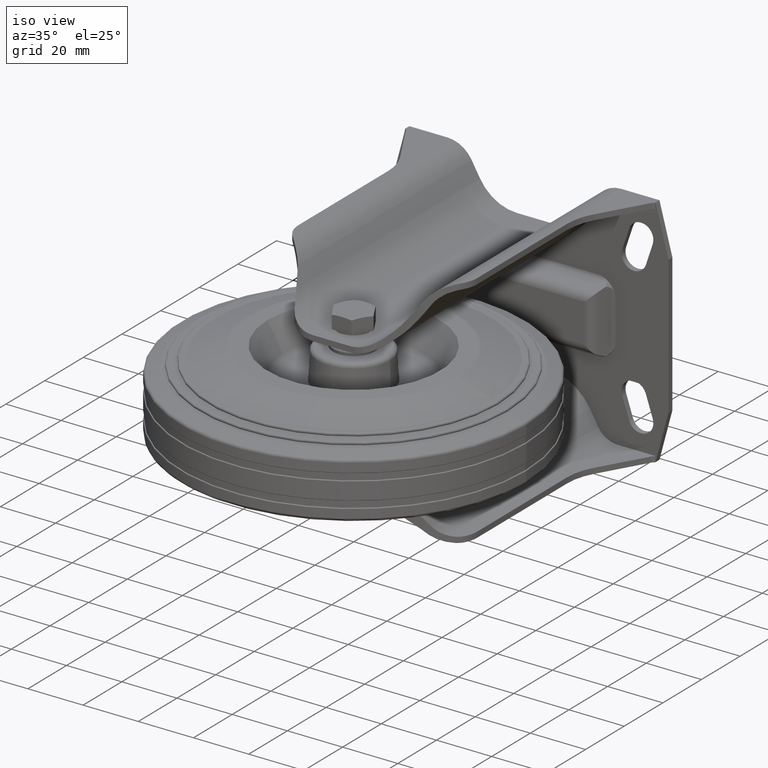
[diagram: clean part render]
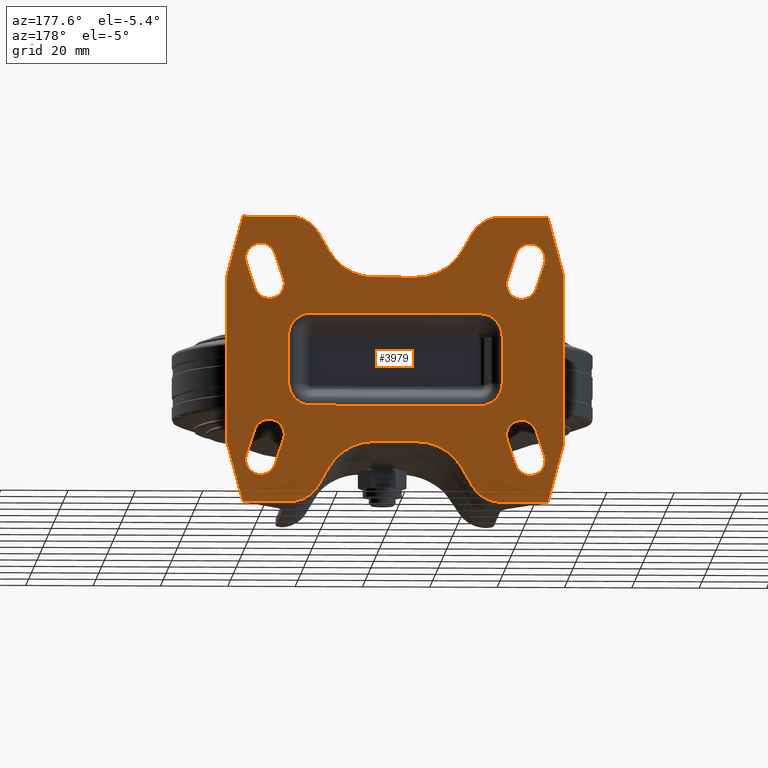
[diagram: tour spotlight — one face highlighted and labeled with its STEP entity id]
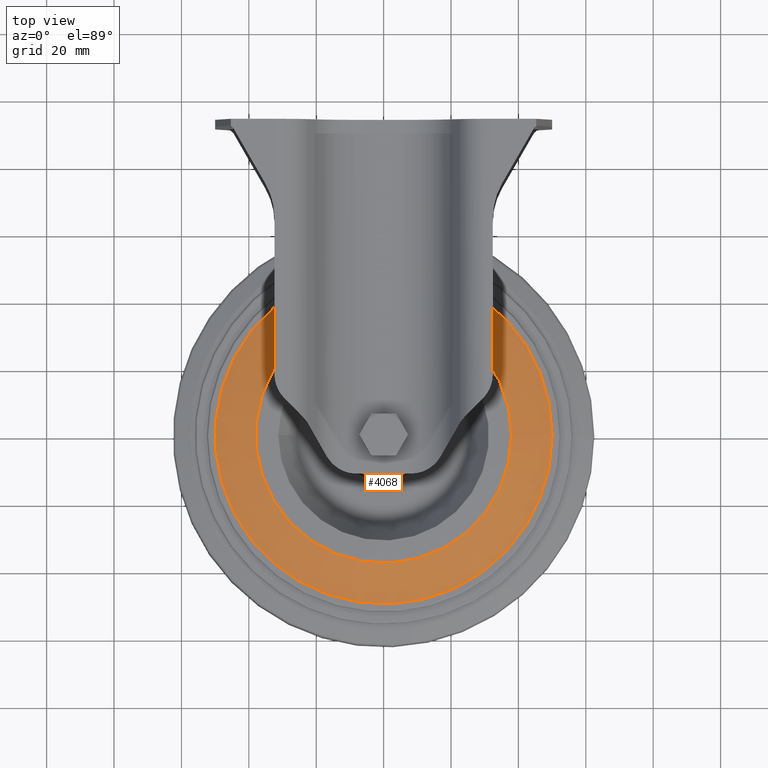
[diagram: tour spotlight — one face highlighted and labeled with its STEP entity id]
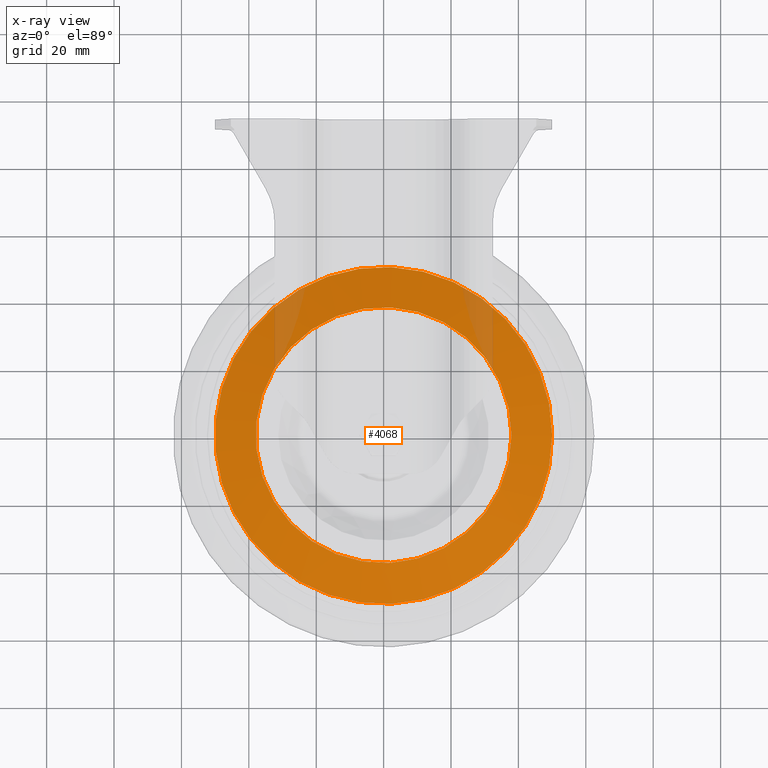
[diagram: x-ray of the same camera — body ghosted, this tour face saturated]
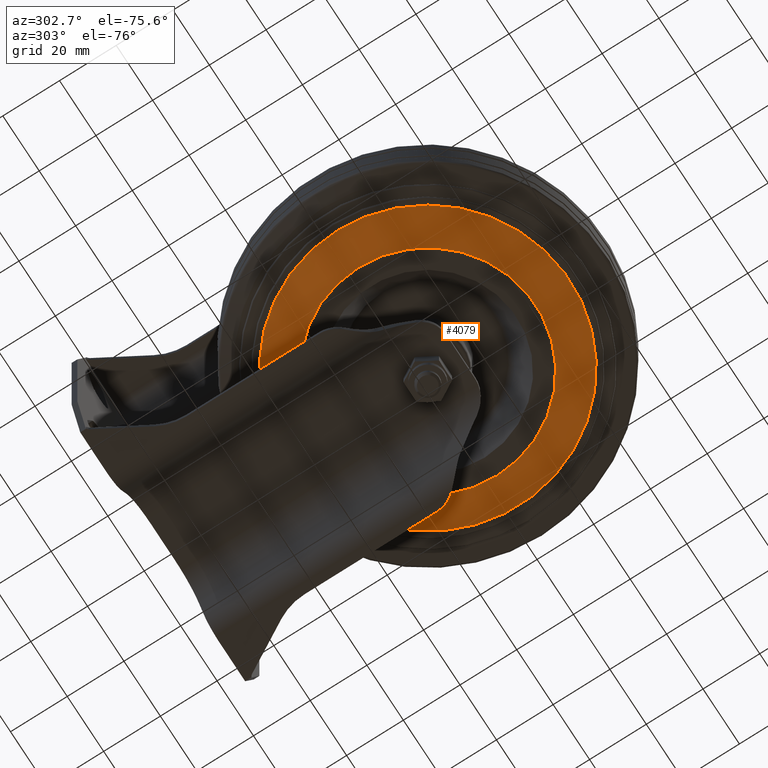
[diagram: tour spotlight — one face highlighted and labeled with its STEP entity id]
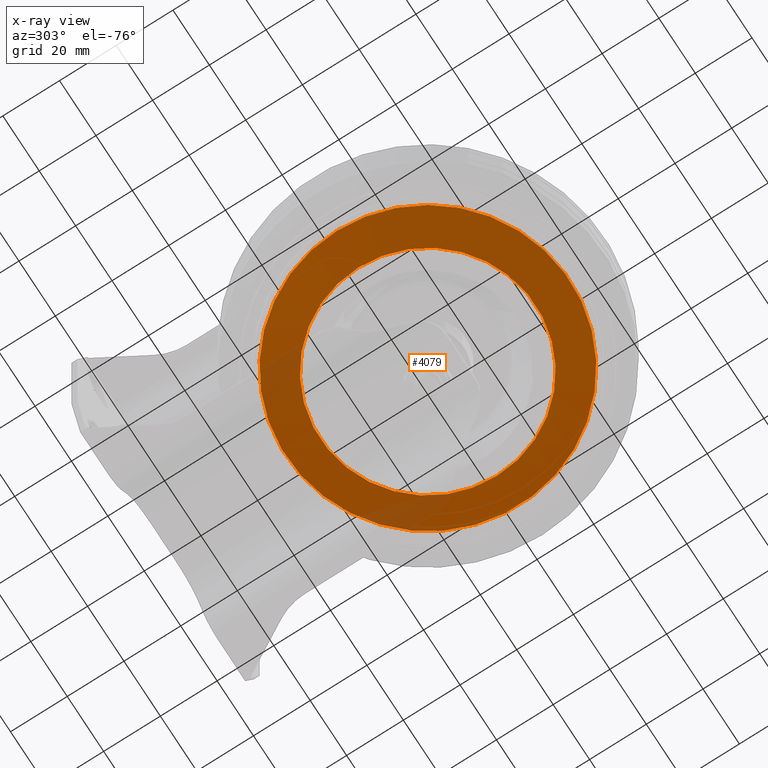
[diagram: x-ray of the same camera — body ghosted, this tour face saturated]
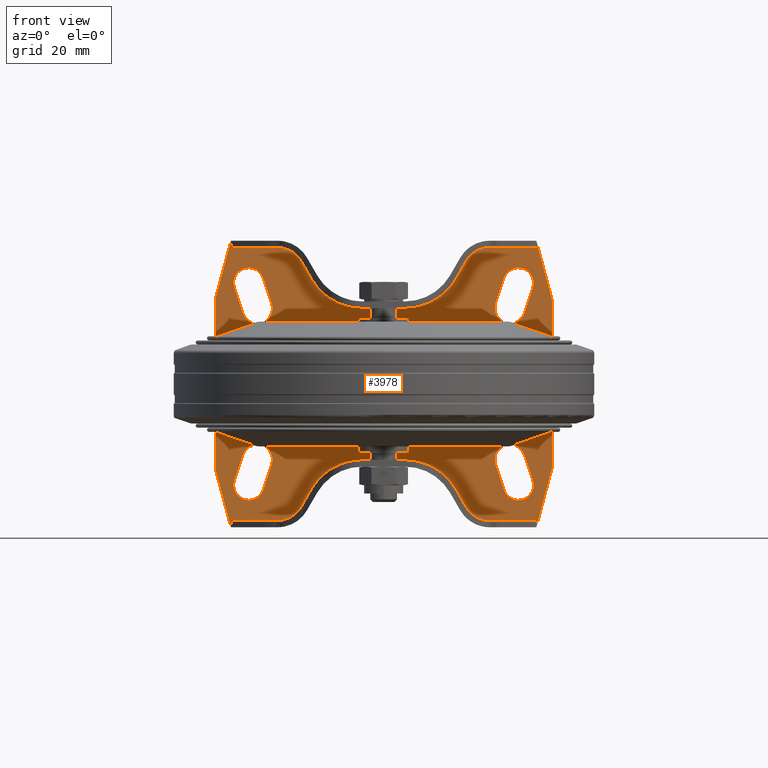
[diagram: tour spotlight — one face highlighted and labeled with its STEP entity id]
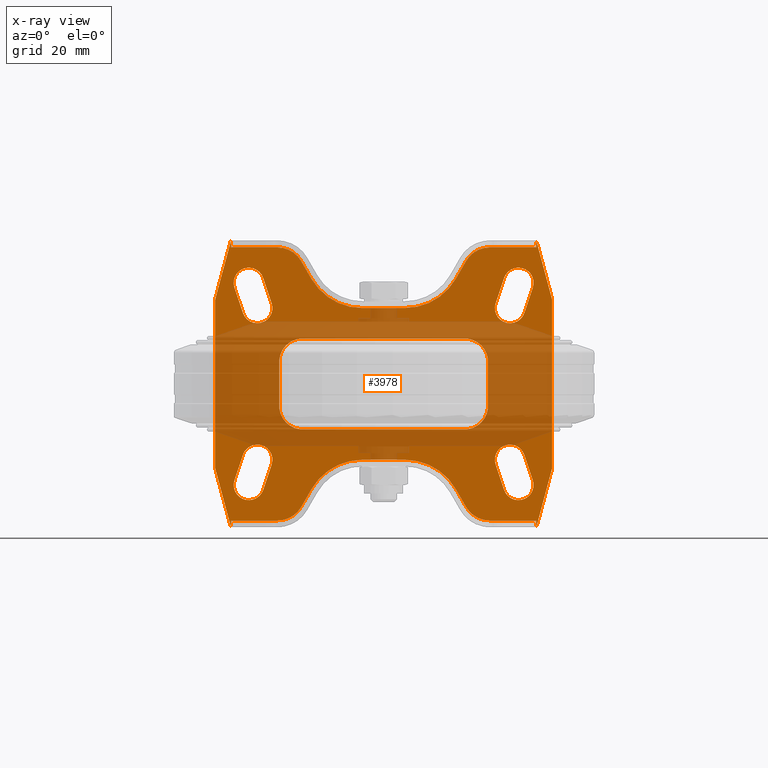
[diagram: x-ray of the same camera — body ghosted, this tour face saturated]
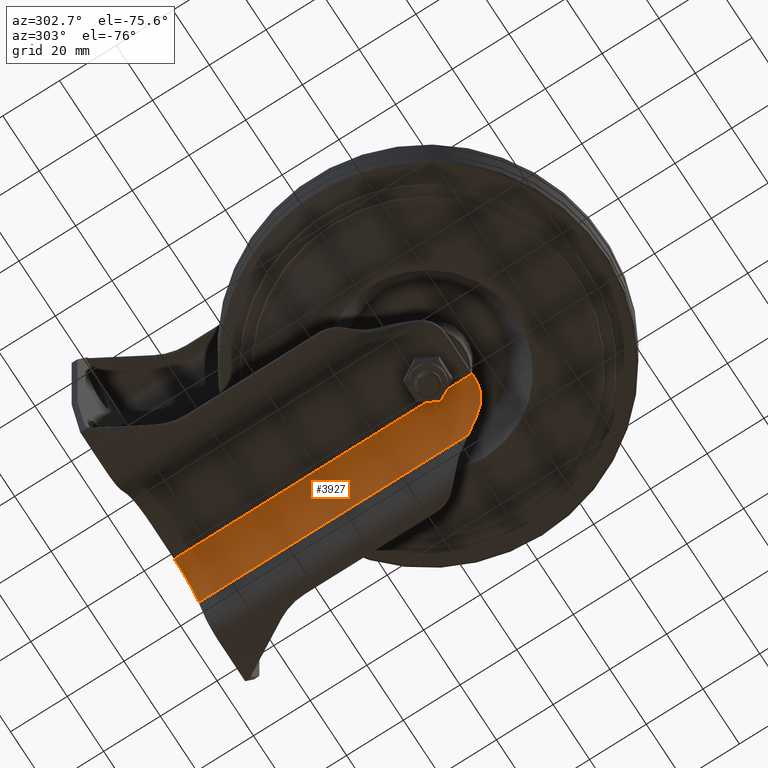
[diagram: tour spotlight — one face highlighted and labeled with its STEP entity id]
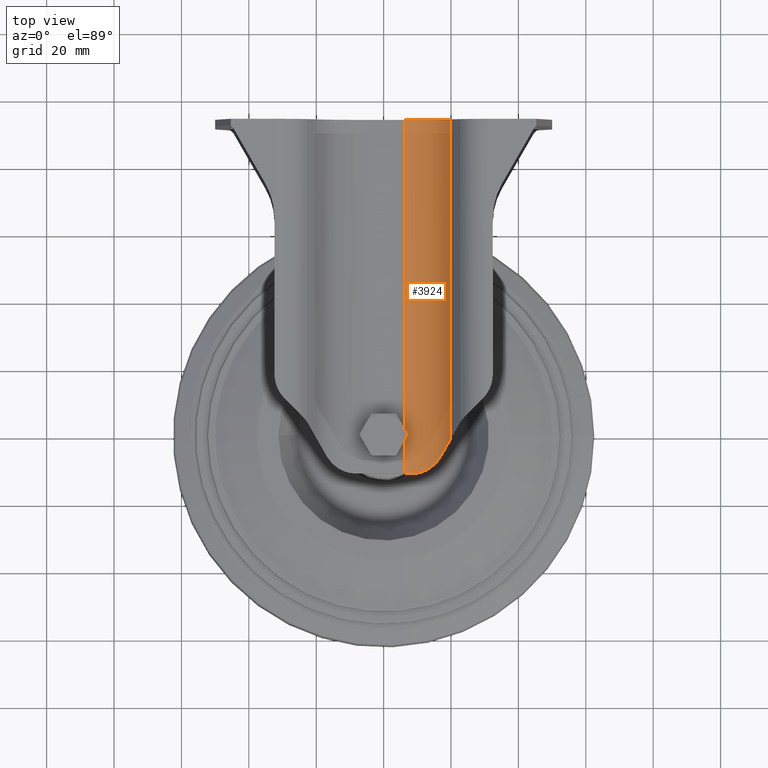
[diagram: tour spotlight — one face highlighted and labeled with its STEP entity id]
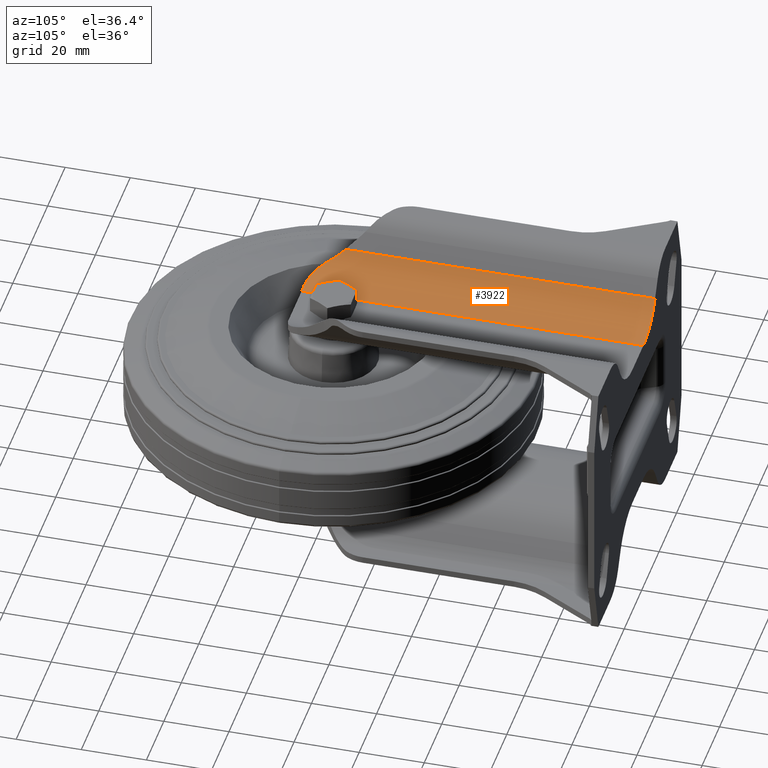
[diagram: tour spotlight — one face highlighted and labeled with its STEP entity id]
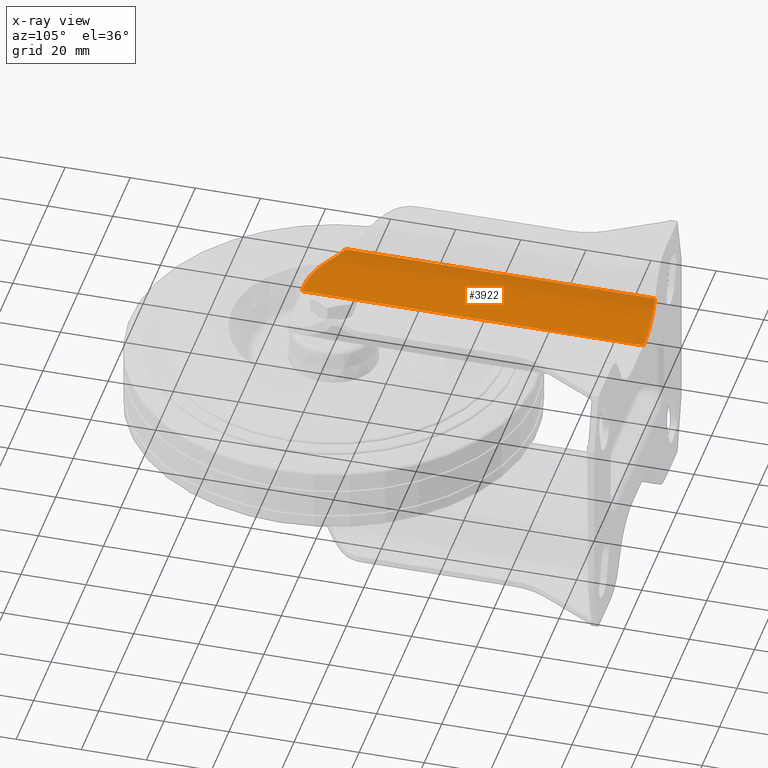
[diagram: x-ray of the same camera — body ghosted, this tour face saturated]
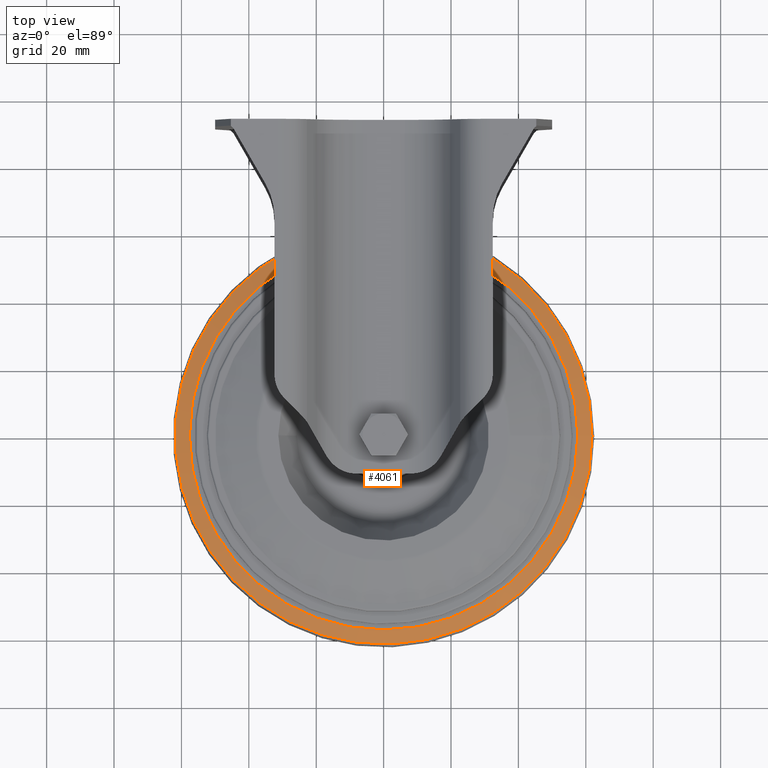
[diagram: tour spotlight — one face highlighted and labeled with its STEP entity id]
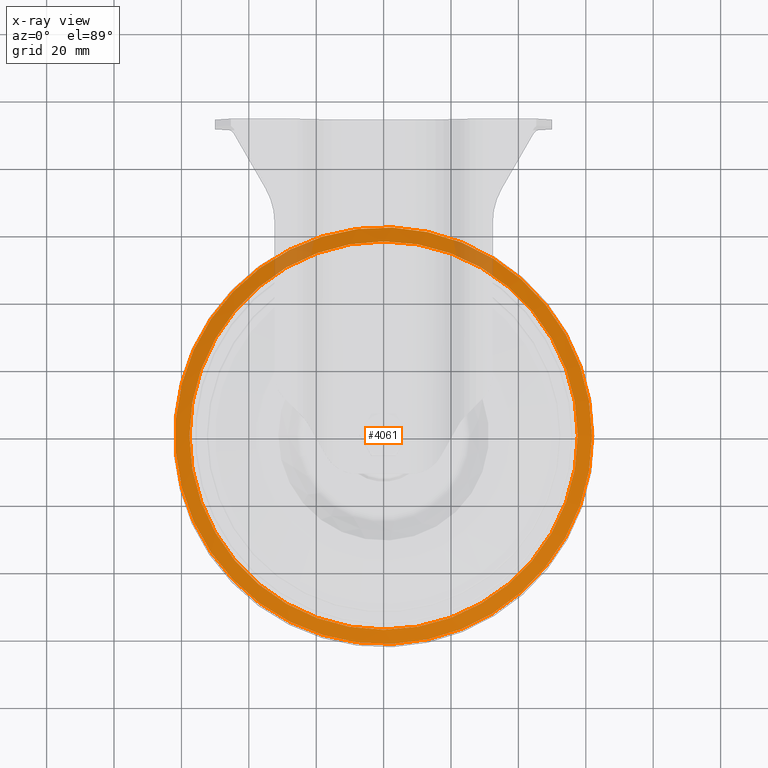
[diagram: x-ray of the same camera — body ghosted, this tour face saturated]
A machine part: a face-by-face anatomy tour. The part has 242 B-rep faces; the first image is the clean iso view, then the 8 largest visible faces are spotlighted one at a time (largest first), each with its STEP entity span.

Face 1 — auxiliary view, entity #3979. In plain terms, the highlighted planar face has unit normal (0, 1, 0).
Definition (entity closure, byte-faithful):
#185=FACE_BOUND('',#1292,.T.);
#186=FACE_BOUND('',#1293,.T.);
#187=FACE_BOUND('',#1294,.T.);
#188=FACE_BOUND('',#1295,.T.);
#189=FACE_BOUND('',#1296,.T.);
#263=PLANE('',#4467);
#335=LINE('',#6429,#602);
#345=LINE('',#6488,#612);
#349=LINE('',#6515,#616);
#353=LINE('',#6526,#620);
#357=LINE('',#6549,#624);
#365=LINE('',#6609,#632);
#416=LINE('',#6816,#683);
#419=LINE('',#6822,#686);
#422=LINE('',#6827,#689);
#425=LINE('',#6833,#692);
#429=LINE('',#6863,#696);
#431=LINE('',#6871,#698);
#434=LINE('',#6877,#701);
#437=LINE('',#6883,#704);
#443=LINE('',#6899,#710);
#445=LINE('',#6923,#712);
#446=LINE('',#6927,#713);
#451=LINE('',#6941,#718);
#454=LINE('',#6948,#721);
#459=LINE('',#6962,#726);
#462=LINE('',#6969,#729);
#467=LINE('',#6983,#734);
#470=LINE('',#6990,#737);
#475=LINE('',#7004,#742);
#484=LINE('',#7036,#751);
#485=LINE('',#7040,#752);
#486=LINE('',#7044,#753);
#487=LINE('',#7047,#754);
#602=VECTOR('',#4962,1000.);
#612=VECTOR('',#4992,1000.);
#616=VECTOR('',#5010,1000.);
#620=VECTOR('',#5018,1000.);
#624=VECTOR('',#5032,1000.);
#632=VECTOR('',#5064,1000.);
#683=VECTOR('',#5209,1000.);
#686=VECTOR('',#5214,1000.);
#689=VECTOR('',#5219,1000.);
#692=VECTOR('',#5226,1000.);
#696=VECTOR('',#5240,1000.);
#698=VECTOR('',#5248,1000.);
#701=VECTOR('',#5253,1000.);
#704=VECTOR('',#5258,1000.);
#710=VECTOR('',#5272,1000.);
#712=VECTOR('',#5284,1000.);
#713=VECTOR('',#5287,1000.);
#718=VECTOR('',#5300,1000.);
#721=VECTOR('',#5305,1000.);
#726=VECTOR('',#5318,1000.);
#729=VECTOR('',#5323,1000.);
#734=VECTOR('',#5336,1000.);
#737=VECTOR('',#5341,1000.);
#742=VECTOR('',#5354,1000.);
#751=VECTOR('',#5397,1000.);
#752=VECTOR('',#5400,1000.);
#753=VECTOR('',#5403,1000.);
#754=VECTOR('',#5406,1000.);
#1033=FACE_OUTER_BOUND('',#1291,.T.);
#1291=EDGE_LOOP('',(#3248,#3249,#3250,#3251,#3252,#3253,#3254,#3255,#3256,
#3257,#3258,#3259,#3260,#3261,#3262,#3263,#3264,#3265,#3266,#3267,#3268,
#3269,#3270,#3271));
#1292=EDGE_LOOP('',(#3272,#3273,#3274,#3275));
#1293=EDGE_LOOP('',(#3276,#3277,#3278,#3279));
#1294=EDGE_LOOP('',(#3280,#3281,#3282,#3283));
#1295=EDGE_LOOP('',(#3284,#3285,#3286,#3287));
#1296=EDGE_LOOP('',(#3288,#3289,#3290,#3291,#3292,#3293,#3294,#3295));
#1477=CIRCLE('',#4330,10.);
#1479=CIRCLE('',#4333,15.5);
#1481=CIRCLE('',#4339,15.5);
#1484=CIRCLE('',#4348,15.5);
#1487=CIRCLE('',#4354,15.5);
#1488=CIRCLE('',#4357,10.);
#1510=CIRCLE('',#4414,10.);
#1517=CIRCLE('',#4429,10.);
#1518=CIRCLE('',#4434,4.5);
#1520=CIRCLE('',#4439,4.5);
#1522=CIRCLE('',#4444,4.49999999999999);
#1524=CIRCLE('',#4449,4.5);
#1526=CIRCLE('',#4453,4.5);
#1528=CIRCLE('',#4456,4.5);
#1530=CIRCLE('',#4459,4.49999999999999);
#1532=CIRCLE('',#4462,4.5);
#1536=CIRCLE('',#4468,6.72974591282622);
#1537=CIRCLE('',#4469,6.72974591282623);
#1538=CIRCLE('',#4470,6.72974591282623);
#1539=CIRCLE('',#4471,6.72974591282622);
#1781=VERTEX_POINT('',#6426);
#1782=VERTEX_POINT('',#6428);
#1791=VERTEX_POINT('',#6452);
#1794=VERTEX_POINT('',#6467);
#1795=VERTEX_POINT('',#6469);
#1799=VERTEX_POINT('',#6486);
#1803=VERTEX_POINT('',#6495);
#1807=VERTEX_POINT('',#6513);
#1809=VERTEX_POINT('',#6518);
#1812=VERTEX_POINT('',#6524);
#1816=VERTEX_POINT('',#6541);
#1818=VERTEX_POINT('',#6547);
#1823=VERTEX_POINT('',#6566);
#1825=VERTEX_POINT('',#6571);
#1829=VERTEX_POINT('',#6591);
#1836=VERTEX_POINT('',#6607);
#1905=VERTEX_POINT('',#6815);
#1907=VERTEX_POINT('',#6821);
#1912=VERTEX_POINT('',#6845);
#1916=VERTEX_POINT('',#6861);
#1919=VERTEX_POINT('',#6870);
#1921=VERTEX_POINT('',#6876);
#1923=VERTEX_POINT('',#6882);
#1929=VERTEX_POINT('',#6897);
#1933=VERTEX_POINT('',#6925);
#1934=VERTEX_POINT('',#6926);
#1937=VERTEX_POINT('',#6934);
#1939=VERTEX_POINT('',#6940);
#1941=VERTEX_POINT('',#6946);
#1942=VERTEX_POINT('',#6947);
#1945=VERTEX_POINT('',#6955);
#1947=VERTEX_POINT('',#6961);
#1949=VERTEX_POINT('',#6967);
#1950=VERTEX_POINT('',#6968);
#1953=VERTEX_POINT('',#6976);
#1955=VERTEX_POINT('',#6982);
#1957=VERTEX_POINT('',#6988);
#1958=VERTEX_POINT('',#6989);
#1961=VERTEX_POINT('',#6997);
#1963=VERTEX_POINT('',#7003);
#1967=VERTEX_POINT('',#7032);
#1968=VERTEX_POINT('',#7033);
#1969=VERTEX_POINT('',#7035);
#1970=VERTEX_POINT('',#7037);
#1971=VERTEX_POINT('',#7039);
#1972=VERTEX_POINT('',#7041);
#1973=VERTEX_POINT('',#7043);
#1974=VERTEX_POINT('',#7045);
#2199=EDGE_CURVE('',#1782,#1781,#335,.T.);
#2209=EDGE_CURVE('',#1781,#1791,#1477,.T.);
#2213=EDGE_CURVE('',#1794,#1795,#1479,.T.);
#2219=EDGE_CURVE('',#1794,#1799,#345,.T.);
#2223=EDGE_CURVE('',#1803,#1799,#1481,.T.);
#2229=EDGE_CURVE('',#1803,#1807,#349,.T.);
#2234=EDGE_CURVE('',#1809,#1812,#353,.T.);
#2239=EDGE_CURVE('',#1816,#1812,#1484,.T.);
#2242=EDGE_CURVE('',#1816,#1818,#357,.T.);
#2248=EDGE_CURVE('',#1823,#1818,#1487,.T.);
#2254=EDGE_CURVE('',#1825,#1829,#1488,.T.);
#2262=EDGE_CURVE('',#1829,#1836,#365,.T.);
#2347=EDGE_CURVE('',#1836,#1905,#416,.T.);
#2350=EDGE_CURVE('',#1905,#1907,#419,.T.);
#2353=EDGE_CURVE('',#1907,#1782,#422,.T.);
#2357=EDGE_CURVE('',#1791,#1795,#425,.T.);
#2360=EDGE_CURVE('',#1807,#1912,#1510,.T.);
#2366=EDGE_CURVE('',#1912,#1916,#429,.T.);
#2370=EDGE_CURVE('',#1916,#1919,#431,.T.);
#2373=EDGE_CURVE('',#1919,#1921,#434,.T.);
#2376=EDGE_CURVE('',#1921,#1923,#437,.T.);
#2385=EDGE_CURVE('',#1923,#1929,#443,.T.);
#2389=EDGE_CURVE('',#1929,#1809,#1517,.T.);
#2392=EDGE_CURVE('',#1823,#1825,#445,.T.);
#2393=EDGE_CURVE('',#1933,#1934,#446,.T.);
#2397=EDGE_CURVE('',#1937,#1933,#1518,.T.);
#2400=EDGE_CURVE('',#1939,#1937,#451,.T.);
#2403=EDGE_CURVE('',#1941,#1942,#454,.T.);
#2407=EDGE_CURVE('',#1945,#1941,#1520,.T.);
#2410=EDGE_CURVE('',#1947,#1945,#459,.T.);
#2413=EDGE_CURVE('',#1949,#1950,#462,.T.);
#2417=EDGE_CURVE('',#1953,#1949,#1522,.T.);
#2420=EDGE_CURVE('',#1955,#1953,#467,.T.);
#2423=EDGE_CURVE('',#1957,#1958,#470,.T.);
#2427=EDGE_CURVE('',#1961,#1957,#1524,.T.);
#2430=EDGE_CURVE('',#1963,#1961,#475,.T.);
#2433=EDGE_CURVE('',#1934,#1939,#1526,.T.);
#2435=EDGE_CURVE('',#1942,#1947,#1528,.T.);
#2437=EDGE_CURVE('',#1950,#1955,#1530,.T.);
#2439=EDGE_CURVE('',#1958,#1963,#1532,.T.);
#2449=EDGE_CURVE('',#1967,#1968,#1536,.T.);
#2450=EDGE_CURVE('',#1969,#1968,#484,.T.);
#2451=EDGE_CURVE('',#1970,#1969,#1537,.T.);
#2452=EDGE_CURVE('',#1970,#1971,#485,.T.);
#2453=EDGE_CURVE('',#1972,#1971,#1538,.T.);
#2454=EDGE_CURVE('',#1972,#1973,#486,.T.);
#2455=EDGE_CURVE('',#1973,#1974,#1539,.T.);
#2456=EDGE_CURVE('',#1967,#1974,#487,.T.);
#3248=ORIENTED_EDGE('',*,*,#2353,.T.);
#3249=ORIENTED_EDGE('',*,*,#2199,.T.);
#3250=ORIENTED_EDGE('',*,*,#2209,.T.);
#3251=ORIENTED_EDGE('',*,*,#2357,.T.);
#3252=ORIENTED_EDGE('',*,*,#2213,.F.);
#3253=ORIENTED_EDGE('',*,*,#2219,.T.);
#3254=ORIENTED_EDGE('',*,*,#2223,.F.);
#3255=ORIENTED_EDGE('',*,*,#2229,.T.);
#3256=ORIENTED_EDGE('',*,*,#2360,.T.);
#3257=ORIENTED_EDGE('',*,*,#2366,.T.);
#3258=ORIENTED_EDGE('',*,*,#2370,.T.);
#3259=ORIENTED_EDGE('',*,*,#2373,.T.);
#3260=ORIENTED_EDGE('',*,*,#2376,.T.);
#3261=ORIENTED_EDGE('',*,*,#2385,.T.);
#3262=ORIENTED_EDGE('',*,*,#2389,.T.);
#3263=ORIENTED_EDGE('',*,*,#2234,.T.);
#3264=ORIENTED_EDGE('',*,*,#2239,.F.);
#3265=ORIENTED_EDGE('',*,*,#2242,.T.);
#3266=ORIENTED_EDGE('',*,*,#2248,.F.);
#3267=ORIENTED_EDGE('',*,*,#2392,.T.);
#3268=ORIENTED_EDGE('',*,*,#2254,.T.);
#3269=ORIENTED_EDGE('',*,*,#2262,.T.);
#3270=ORIENTED_EDGE('',*,*,#2347,.T.);
#3271=ORIENTED_EDGE('',*,*,#2350,.T.);
#3272=ORIENTED_EDGE('',*,*,#2423,.F.);
#3273=ORIENTED_EDGE('',*,*,#2427,.F.);
#3274=ORIENTED_EDGE('',*,*,#2430,.F.);
#3275=ORIENTED_EDGE('',*,*,#2439,.F.);
#3276=ORIENTED_EDGE('',*,*,#2413,.F.);
#3277=ORIENTED_EDGE('',*,*,#2417,.F.);
#3278=ORIENTED_EDGE('',*,*,#2420,.F.);
#3279=ORIENTED_EDGE('',*,*,#2437,.F.);
#3280=ORIENTED_EDGE('',*,*,#2403,.F.);
#3281=ORIENTED_EDGE('',*,*,#2407,.F.);
#3282=ORIENTED_EDGE('',*,*,#2410,.F.);
#3283=ORIENTED_EDGE('',*,*,#2435,.F.);
#3284=ORIENTED_EDGE('',*,*,#2393,.F.);
#3285=ORIENTED_EDGE('',*,*,#2397,.F.);
#3286=ORIENTED_EDGE('',*,*,#2400,.F.);
#3287=ORIENTED_EDGE('',*,*,#2433,.F.);
#3288=ORIENTED_EDGE('',*,*,#2449,.T.);
#3289=ORIENTED_EDGE('',*,*,#2450,.F.);
#3290=ORIENTED_EDGE('',*,*,#2451,.F.);
#3291=ORIENTED_EDGE('',*,*,#2452,.T.);
#3292=ORIENTED_EDGE('',*,*,#2453,.F.);
#3293=ORIENTED_EDGE('',*,*,#2454,.T.);
#3294=ORIENTED_EDGE('',*,*,#2455,.T.);
#3295=ORIENTED_EDGE('',*,*,#2456,.F.);
#3979=ADVANCED_FACE('',(#1033,#185,#186,#187,#188,#189),#263,.T.);
#4330=AXIS2_PLACEMENT_3D('',#6454,#4976,#4977);
#4333=AXIS2_PLACEMENT_3D('',#6470,#4983,#4984);
#4339=AXIS2_PLACEMENT_3D('',#6497,#5000,#5001);
#4348=AXIS2_PLACEMENT_3D('',#6543,#5026,#5027);
#4354=AXIS2_PLACEMENT_3D('',#6568,#5042,#5043);
#4357=AXIS2_PLACEMENT_3D('',#6593,#5050,#5051);
#4414=AXIS2_PLACEMENT_3D('',#6847,#5230,#5231);
#4429=AXIS2_PLACEMENT_3D('',#6918,#5277,#5278);
#4434=AXIS2_PLACEMENT_3D('',#6935,#5293,#5294);
#4439=AXIS2_PLACEMENT_3D('',#6956,#5311,#5312);
#4444=AXIS2_PLACEMENT_3D('',#6977,#5329,#5330);
#4449=AXIS2_PLACEMENT_3D('',#6998,#5347,#5348);
#4453=AXIS2_PLACEMENT_3D('',#7009,#5359,#5360);
#4456=AXIS2_PLACEMENT_3D('',#7012,#5365,#5366);
#4459=AXIS2_PLACEMENT_3D('',#7015,#5371,#5372);
#4462=AXIS2_PLACEMENT_3D('',#7018,#5377,#5378);
#4467=AXIS2_PLACEMENT_3D('',#7031,#5393,#5394);
#4468=AXIS2_PLACEMENT_3D('',#7034,#5395,#5396);
#4469=AXIS2_PLACEMENT_3D('',#7038,#5398,#5399);
#4470=AXIS2_PLACEMENT_3D('',#7042,#5401,#5402);
#4471=AXIS2_PLACEMENT_3D('',#7046,#5404,#5405);
#4962=DIRECTION('',(1.,0.,0.));
#4976=DIRECTION('center_axis',(0.,1.,0.));
#4977=DIRECTION('ref_axis',(1.,0.,0.));
#4983=DIRECTION('center_axis',(0.,1.,0.));
#4984=DIRECTION('ref_axis',(1.,0.,0.));
#4992=DIRECTION('',(1.,0.,0.));
#5000=DIRECTION('center_axis',(0.,1.,0.));
#5001=DIRECTION('ref_axis',(1.,0.,0.));
#5010=DIRECTION('',(0.5,0.,0.866025403784439));
#5018=DIRECTION('',(-0.5,0.,0.866025403784439));
#5026=DIRECTION('center_axis',(0.,1.,0.));
#5027=DIRECTION('ref_axis',(1.,0.,0.));
#5032=DIRECTION('',(-1.,0.,0.));
#5042=DIRECTION('center_axis',(0.,1.,0.));
#5043=DIRECTION('ref_axis',(1.,0.,0.));
#5050=DIRECTION('center_axis',(0.,1.,0.));
#5051=DIRECTION('ref_axis',(1.,0.,0.));
#5064=DIRECTION('',(-1.,0.,0.));
#5209=DIRECTION('',(-0.258819045102521,0.,0.965925826289068));
#5214=DIRECTION('',(0.,0.,1.));
#5219=DIRECTION('',(0.258819045102521,0.,0.965925826289068));
#5226=DIRECTION('',(0.5,0.,-0.866025403784439));
#5230=DIRECTION('center_axis',(0.,1.,0.));
#5231=DIRECTION('ref_axis',(1.,0.,0.));
#5240=DIRECTION('',(1.,0.,0.));
#5248=DIRECTION('',(0.258819045102521,0.,-0.965925826289068));
#5253=DIRECTION('',(0.,0.,-1.));
#5258=DIRECTION('',(-0.258819045102521,0.,-0.965925826289068));
#5272=DIRECTION('',(-1.,0.,0.));
#5277=DIRECTION('center_axis',(0.,1.,0.));
#5278=DIRECTION('ref_axis',(1.,0.,0.));
#5284=DIRECTION('',(-0.5,0.,-0.866025403784439));
#5287=DIRECTION('',(-0.316227766016838,0.,0.948683298050514));
#5293=DIRECTION('center_axis',(0.,1.,0.));
#5294=DIRECTION('ref_axis',(1.,0.,0.));
#5300=DIRECTION('',(0.316227766016838,0.,-0.948683298050514));
#5305=DIRECTION('',(-0.316227766016838,0.,-0.948683298050514));
#5311=DIRECTION('center_axis',(0.,1.,0.));
#5312=DIRECTION('ref_axis',(1.,0.,0.));
#5318=DIRECTION('',(0.316227766016838,0.,0.948683298050514));
#5323=DIRECTION('',(-0.316227766016838,0.,-0.948683298050514));
#5329=DIRECTION('center_axis',(0.,1.,0.));
#5330=DIRECTION('ref_axis',(1.,0.,0.));
#5336=DIRECTION('',(0.316227766016838,0.,0.948683298050514));
#5341=DIRECTION('',(-0.316227766016838,0.,0.948683298050514));
#5347=DIRECTION('center_axis',(0.,1.,0.));
#5348=DIRECTION('ref_axis',(1.,0.,0.));
#5354=DIRECTION('',(0.316227766016838,0.,-0.948683298050514));
#5359=DIRECTION('center_axis',(0.,1.,0.));
#5360=DIRECTION('ref_axis',(1.,0.,0.));
#5365=DIRECTION('center_axis',(0.,1.,0.));
#5366=DIRECTION('ref_axis',(1.,0.,0.));
#5371=DIRECTION('center_axis',(0.,1.,0.));
#5372=DIRECTION('ref_axis',(1.,0.,0.));
#5377=DIRECTION('center_axis',(0.,1.,0.));
#5378=DIRECTION('ref_axis',(1.,0.,0.));
#5393=DIRECTION('center_axis',(0.,1.,0.));
#5394=DIRECTION('ref_axis',(0.,0.,1.));
#5395=DIRECTION('center_axis',(0.,-1.,0.));
#5396=DIRECTION('ref_axis',(0.,0.,-1.));
#5397=DIRECTION('',(0.,0.,-1.));
#5398=DIRECTION('center_axis',(0.,1.,8.67361737988404E-17));
#5399=DIRECTION('ref_axis',(0.,-8.67361737988404E-17,1.));
#5400=DIRECTION('',(-1.,0.,0.));
#5401=DIRECTION('center_axis',(0.,1.,8.67361737988404E-17));
#5402=DIRECTION('ref_axis',(0.,-8.67361737988404E-17,1.));
#5403=DIRECTION('',(0.,0.,-1.));
#5404=DIRECTION('center_axis',(0.,-1.,0.));
#5405=DIRECTION('ref_axis',(0.,0.,-1.));
#5406=DIRECTION('',(-1.,0.,0.));
#6426=CARTESIAN_POINT('',(-31.4158075373095,93.5,42.5));
#6428=CARTESIAN_POINT('',(-45.3108891324554,93.5,42.5));
#6429=CARTESIAN_POINT('',(-45.3108891324554,93.5,42.5));
#6452=CARTESIAN_POINT('',(-22.7555534994651,93.5,37.5));
#6454=CARTESIAN_POINT('Origin',(-31.4158075373095,93.5,32.5));
#6467=CARTESIAN_POINT('',(-6.30107082756081,93.5,24.5));
#6469=CARTESIAN_POINT('',(-19.7244645862196,93.5,32.25));
#6470=CARTESIAN_POINT('Origin',(-6.3010708275608,93.5,40.));
#6486=CARTESIAN_POINT('',(6.3010708275608,93.5,24.5));
#6488=CARTESIAN_POINT('',(-6.3010708275608,93.5,24.5));
#6495=CARTESIAN_POINT('',(19.7244645862196,93.5,32.25));
#6497=CARTESIAN_POINT('Origin',(6.3010708275608,93.5,40.));
#6513=CARTESIAN_POINT('',(22.7555534994651,93.5,37.5));
#6515=CARTESIAN_POINT('',(19.7244645862196,93.5,32.25));
#6518=CARTESIAN_POINT('',(22.7555534994651,93.5,-37.5));
#6524=CARTESIAN_POINT('',(19.7244645862196,93.5,-32.25));
#6526=CARTESIAN_POINT('',(22.7555534994651,93.5,-37.5));
#6541=CARTESIAN_POINT('',(6.3010708275608,93.5,-24.5));
#6543=CARTESIAN_POINT('Origin',(6.3010708275608,93.5,-40.));
#6547=CARTESIAN_POINT('',(-6.3010708275608,93.5,-24.5));
#6549=CARTESIAN_POINT('',(6.3010708275608,93.5,-24.5));
#6566=CARTESIAN_POINT('',(-19.7244645862196,93.5,-32.25));
#6568=CARTESIAN_POINT('Origin',(-6.30107082756081,93.5,-40.));
#6571=CARTESIAN_POINT('',(-22.7555534994651,93.5,-37.5));
#6591=CARTESIAN_POINT('',(-31.4158075373095,93.5,-42.5));
#6593=CARTESIAN_POINT('Origin',(-31.4158075373095,93.5,-32.5));
#6607=CARTESIAN_POINT('',(-45.3108891324554,93.5,-42.5));
#6609=CARTESIAN_POINT('',(-31.4158075373095,93.5,-42.5));
#6815=CARTESIAN_POINT('',(-50.,93.5,-25.));
#6816=CARTESIAN_POINT('',(-45.3108891324554,93.5,-42.5));
#6821=CARTESIAN_POINT('',(-50.,93.5,25.));
#6822=CARTESIAN_POINT('',(-50.,93.5,-25.));
#6827=CARTESIAN_POINT('',(-50.,93.5,25.));
#6833=CARTESIAN_POINT('',(-22.7555534994651,93.5,37.5));
#6845=CARTESIAN_POINT('',(31.4158075373095,93.5,42.5));
#6847=CARTESIAN_POINT('Origin',(31.4158075373095,93.5,32.5));
#6861=CARTESIAN_POINT('',(45.3108891324554,93.5,42.5));
#6863=CARTESIAN_POINT('',(31.4158075373095,93.5,42.5));
#6870=CARTESIAN_POINT('',(50.,93.5,25.));
#6871=CARTESIAN_POINT('',(45.3108891324554,93.5,42.5));
#6876=CARTESIAN_POINT('',(50.,93.5,-25.));
#6877=CARTESIAN_POINT('',(50.,93.5,25.));
#6882=CARTESIAN_POINT('',(45.3108891324554,93.5,-42.5));
#6883=CARTESIAN_POINT('',(50.,93.5,-25.));
#6897=CARTESIAN_POINT('',(31.4158075373095,93.5,-42.5));
#6899=CARTESIAN_POINT('',(45.3108891324554,93.5,-42.5));
#6918=CARTESIAN_POINT('Origin',(31.4158075373095,93.5,-32.5));
#6923=CARTESIAN_POINT('',(-19.7244645862196,93.5,-32.25));
#6925=CARTESIAN_POINT('',(35.7309251587727,93.5,-31.4230249470758));
#6926=CARTESIAN_POINT('',(33.2309251587727,93.5,-23.9230249470758));
#6927=CARTESIAN_POINT('',(35.7309251587727,93.5,-31.4230249470758));
#6934=CARTESIAN_POINT('',(44.2690748412273,93.5,-28.5769750529242));
#6935=CARTESIAN_POINT('Origin',(40.,93.5,-30.));
#6940=CARTESIAN_POINT('',(41.7690748412273,93.5,-21.0769750529242));
#6941=CARTESIAN_POINT('',(41.7690748412273,93.5,-21.0769750529242));
#6946=CARTESIAN_POINT('',(44.2690748412273,93.5,28.5769750529242));
#6947=CARTESIAN_POINT('',(41.7690748412273,93.5,21.0769750529242));
#6948=CARTESIAN_POINT('',(44.2690748412273,93.5,28.5769750529242));
#6955=CARTESIAN_POINT('',(35.7309251587727,93.5,31.4230249470758));
#6956=CARTESIAN_POINT('Origin',(40.,93.5,30.));
#6961=CARTESIAN_POINT('',(33.2309251587727,93.5,23.9230249470758));
#6962=CARTESIAN_POINT('',(33.2309251587727,93.5,23.9230249470758));
#6967=CARTESIAN_POINT('',(-33.2309251587727,93.5,-23.9230249470758));
#6968=CARTESIAN_POINT('',(-35.7309251587727,93.5,-31.4230249470758));
#6969=CARTESIAN_POINT('',(-33.2309251587727,93.5,-23.9230249470758));
#6976=CARTESIAN_POINT('',(-41.7690748412273,93.5,-21.0769750529242));
#6977=CARTESIAN_POINT('Origin',(-37.5,93.5,-22.5));
#6982=CARTESIAN_POINT('',(-44.2690748412273,93.5,-28.5769750529242));
#6983=CARTESIAN_POINT('',(-44.2690748412273,93.5,-28.5769750529242));
#6988=CARTESIAN_POINT('',(-41.7690748412273,93.5,21.0769750529242));
#6989=CARTESIAN_POINT('',(-44.2690748412273,93.5,28.5769750529242));
#6990=CARTESIAN_POINT('',(-41.7690748412273,93.5,21.0769750529242));
#6997=CARTESIAN_POINT('',(-33.2309251587727,93.5,23.9230249470758));
#6998=CARTESIAN_POINT('Origin',(-37.5,93.5,22.5));
#7003=CARTESIAN_POINT('',(-35.7309251587727,93.5,31.4230249470758));
#7004=CARTESIAN_POINT('',(-35.7309251587727,93.5,31.4230249470758));
#7009=CARTESIAN_POINT('Origin',(37.5,93.5,-22.5));
#7012=CARTESIAN_POINT('Origin',(37.5,93.5,22.5));
#7015=CARTESIAN_POINT('Origin',(-40.,93.5,-30.));
#7018=CARTESIAN_POINT('Origin',(-40.,93.5,30.));
#7031=CARTESIAN_POINT('Origin',(-31.4158075373095,93.5,32.5));
#7032=CARTESIAN_POINT('',(25.,93.5,-13.7297459128262));
#7033=CARTESIAN_POINT('',(31.7297459128262,93.5,-7.00000000000001));
#7034=CARTESIAN_POINT('Origin',(25.,93.5,-7.00000000000001));
#7035=CARTESIAN_POINT('',(31.7297459128262,93.5,7.));
#7036=CARTESIAN_POINT('',(31.7297459128262,93.5,7.));
#7037=CARTESIAN_POINT('',(25.,93.5,13.7297459128262));
#7038=CARTESIAN_POINT('Origin',(25.,93.5,7.));
#7039=CARTESIAN_POINT('',(-25.,93.5,13.7297459128262));
#7040=CARTESIAN_POINT('',(25.,93.5,13.7297459128262));
#7041=CARTESIAN_POINT('',(-31.7297459128262,93.5,7.));
#7042=CARTESIAN_POINT('Origin',(-25.,93.5,7.));
#7043=CARTESIAN_POINT('',(-31.7297459128262,93.5,-7.));
#7044=CARTESIAN_POINT('',(-31.7297459128262,93.5,7.));
#7045=CARTESIAN_POINT('',(-25.,93.5,-13.7297459128262));
#7046=CARTESIAN_POINT('Origin',(-25.,93.5,-7.00000000000001));
#7047=CARTESIAN_POINT('',(25.,93.5,-13.7297459128262));

Face 2 — top view, entity #4068. An x-ray twin of the same camera follows (body ghosted, this face saturated) — the face is partly hidden behind the body. In plain terms, the highlighted conical surface has half-angle 71 deg.
Definition (entity closure, byte-faithful):
#558=LINE('',#7349,#825);
#825=VECTOR('',#5757,50.);
#1122=FACE_OUTER_BOUND('',#1388,.T.);
#1388=EDGE_LOOP('',(#3692,#3693,#3694,#3695));
#1587=CIRCLE('',#4610,50.);
#1588=CIRCLE('',#4612,37.9746766361272);
#2020=VERTEX_POINT('',#7345);
#2021=VERTEX_POINT('',#7348);
#2582=EDGE_CURVE('',#2020,#2020,#1587,.T.);
#2583=EDGE_CURVE('',#2020,#2021,#558,.T.);
#2584=EDGE_CURVE('',#2021,#2021,#1588,.T.);
#3692=ORIENTED_EDGE('',*,*,#2582,.F.);
#3693=ORIENTED_EDGE('',*,*,#2583,.T.);
#3694=ORIENTED_EDGE('',*,*,#2584,.T.);
#3695=ORIENTED_EDGE('',*,*,#2583,.F.);
#3854=CONICAL_SURFACE('',#4611,50.,1.23918376891597);
#4068=ADVANCED_FACE('',(#1122),#3854,.T.);
#4610=AXIS2_PLACEMENT_3D('',#7346,#5753,#5754);
#4611=AXIS2_PLACEMENT_3D('',#7347,#5755,#5756);
#4612=AXIS2_PLACEMENT_3D('',#7350,#5758,#5759);
#5753=DIRECTION('center_axis',(-3.47869486588621E-17,0.,-1.));
#5754=DIRECTION('ref_axis',(-1.,0.,3.47869486588621E-17));
#5755=DIRECTION('center_axis',(-3.47869486588621E-17,0.,-1.));
#5756=DIRECTION('ref_axis',(-1.,0.,3.47869486588621E-17));
#5757=DIRECTION('',(-0.945518575599315,1.15792629714207E-16,0.32556815445716));
#5758=DIRECTION('center_axis',(-3.47869486588621E-17,0.,-1.));
#5759=DIRECTION('ref_axis',(-1.,0.,3.47869486588621E-17));
#7345=CARTESIAN_POINT('',(50.,-6.12323399573677E-15,14.1959048338792));
#7346=CARTESIAN_POINT('Origin',(4.93832212622248E-16,0.,14.1959048338792));
#7347=CARTESIAN_POINT('Origin',(4.93832212622248E-16,0.,14.1959048338792));
#7348=CARTESIAN_POINT('',(37.9746766361272,-4.6505566191089E-15,18.336555726798));
#7349=CARTESIAN_POINT('',(50.,-6.12323399573677E-15,14.1959048338792));
#7350=CARTESIAN_POINT('Origin',(6.37872822648484E-16,0.,18.336555726798));

Face 3 — auxiliary view, entity #4079. An x-ray twin of the same camera follows (body ghosted, this face saturated) — the face is partly hidden behind the body. In plain terms, the highlighted conical surface has half-angle 71 deg.
Definition (entity closure, byte-faithful):
#561=LINE('',#7396,#828);
#828=VECTOR('',#5820,37.9746766361272);
#1133=FACE_OUTER_BOUND('',#1403,.T.);
#1403=EDGE_LOOP('',(#3731,#3732,#3733,#3734,#3735));
#1604=CIRCLE('',#4638,37.9746766361272);
#1605=CIRCLE('',#4639,37.9746766361272);
#1606=CIRCLE('',#4641,50.);
#2033=VERTEX_POINT('',#7388);
#2034=VERTEX_POINT('',#7390);
#2035=VERTEX_POINT('',#7394);
#2602=EDGE_CURVE('',#2033,#2034,#1604,.T.);
#2603=EDGE_CURVE('',#2034,#2033,#1605,.T.);
#2604=EDGE_CURVE('',#2035,#2035,#1606,.T.);
#2605=EDGE_CURVE('',#2035,#2034,#561,.T.);
#3731=ORIENTED_EDGE('',*,*,#2604,.T.);
#3732=ORIENTED_EDGE('',*,*,#2605,.T.);
#3733=ORIENTED_EDGE('',*,*,#2602,.F.);
#3734=ORIENTED_EDGE('',*,*,#2603,.F.);
#3735=ORIENTED_EDGE('',*,*,#2605,.F.);
#3857=CONICAL_SURFACE('',#4640,37.9746766361272,1.23918376891597);
#4079=ADVANCED_FACE('',(#1133),#3857,.T.);
#4638=AXIS2_PLACEMENT_3D('',#7391,#5812,#5813);
#4639=AXIS2_PLACEMENT_3D('',#7392,#5814,#5815);
#4640=AXIS2_PLACEMENT_3D('',#7393,#5816,#5817);
#4641=AXIS2_PLACEMENT_3D('',#7395,#5818,#5819);
#5812=DIRECTION('center_axis',(-3.47869486588621E-17,0.,-1.));
#5813=DIRECTION('ref_axis',(-1.,0.,3.47869486588621E-17));
#5814=DIRECTION('center_axis',(-3.47869486588621E-17,0.,-1.));
#5815=DIRECTION('ref_axis',(-1.,0.,3.47869486588621E-17));
#5816=DIRECTION('center_axis',(3.47869486588621E-17,0.,1.));
#5817=DIRECTION('ref_axis',(1.,0.,-3.47869486588621E-17));
#5818=DIRECTION('center_axis',(-3.47869486588621E-17,0.,-1.));
#5819=DIRECTION('ref_axis',(-1.,0.,3.47869486588621E-17));
#5820=DIRECTION('',(0.945518575599316,1.15792629714207E-16,-0.325568154457161));
#7388=CARTESIAN_POINT('',(37.9746766361272,-4.6505566191089E-15,-18.336555726798));
#7390=CARTESIAN_POINT('',(-37.9746766361272,0.,-18.336555726798));
#7391=CARTESIAN_POINT('Origin',(-6.37872822648484E-16,0.,-18.336555726798));
#7392=CARTESIAN_POINT('Origin',(-6.37872822648484E-16,0.,-18.336555726798));
#7393=CARTESIAN_POINT('Origin',(-6.37872822648484E-16,0.,-18.336555726798));
#7394=CARTESIAN_POINT('',(-50.,0.,-14.1959048338792));
#7395=CARTESIAN_POINT('Origin',(-4.93832212622248E-16,0.,-14.1959048338792));
#7396=CARTESIAN_POINT('',(-37.9746766361272,-4.6505566191089E-15,-18.336555726798));

Face 4 — front view, entity #3978. An x-ray twin of the same camera follows (body ghosted, this face saturated) — the face is partly hidden behind the body. In plain terms, the highlighted planar face has unit normal (0, 1, 0).
Definition (entity closure, byte-faithful):
#180=FACE_BOUND('',#1286,.T.);
#181=FACE_BOUND('',#1287,.T.);
#182=FACE_BOUND('',#1288,.T.);
#183=FACE_BOUND('',#1289,.T.);
#184=FACE_BOUND('',#1290,.T.);
#262=PLANE('',#4464);
#368=LINE('',#6615,#635);
#370=LINE('',#6622,#637);
#376=LINE('',#6649,#643);
#381=LINE('',#6673,#648);
#385=LINE('',#6701,#652);
#390=LINE('',#6711,#657);
#393=LINE('',#6717,#660);
#397=LINE('',#6726,#664);
#402=LINE('',#6739,#669);
#406=LINE('',#6762,#673);
#411=LINE('',#6791,#678);
#415=LINE('',#6813,#682);
#417=LINE('',#6818,#684);
#420=LINE('',#6824,#687);
#423=LINE('',#6828,#690);
#432=LINE('',#6873,#699);
#435=LINE('',#6879,#702);
#438=LINE('',#6884,#705);
#448=LINE('',#6931,#715);
#452=LINE('',#6943,#719);
#456=LINE('',#6952,#723);
#460=LINE('',#6964,#727);
#464=LINE('',#6973,#731);
#468=LINE('',#6985,#735);
#472=LINE('',#6994,#739);
#476=LINE('',#7006,#743);
#478=LINE('',#7022,#745);
#479=LINE('',#7026,#746);
#480=LINE('',#7027,#747);
#481=LINE('',#7028,#748);
#482=LINE('',#7029,#749);
#483=LINE('',#7030,#750);
#635=VECTOR('',#5069,1000.);
#637=VECTOR('',#5075,1000.);
#643=VECTOR('',#5095,1000.);
#648=VECTOR('',#5110,1000.);
#652=VECTOR('',#5128,1000.);
#657=VECTOR('',#5135,1000.);
#660=VECTOR('',#5140,1000.);
#664=VECTOR('',#5146,1000.);
#669=VECTOR('',#5155,1000.);
#673=VECTOR('',#5169,1000.);
#678=VECTOR('',#5188,1000.);
#682=VECTOR('',#5206,1000.);
#684=VECTOR('',#5210,1000.);
#687=VECTOR('',#5215,1000.);
#690=VECTOR('',#5220,1000.);
#699=VECTOR('',#5249,1000.);
#702=VECTOR('',#5254,1000.);
#705=VECTOR('',#5259,1000.);
#715=VECTOR('',#5289,1000.);
#719=VECTOR('',#5301,1000.);
#723=VECTOR('',#5307,1000.);
#727=VECTOR('',#5319,1000.);
#731=VECTOR('',#5325,1000.);
#735=VECTOR('',#5337,1000.);
#739=VECTOR('',#5343,1000.);
#743=VECTOR('',#5355,1000.);
#745=VECTOR('',#5383,1000.);
#746=VECTOR('',#5388,1000.);
#747=VECTOR('',#5389,1000.);
#748=VECTOR('',#5390,1000.);
#749=VECTOR('',#5391,1000.);
#750=VECTOR('',#5392,1000.);
#1032=FACE_OUTER_BOUND('',#1285,.T.);
#1285=EDGE_LOOP('',(#3196,#3197,#3198,#3199,#3200,#3201,#3202,#3203,#3204,
#3205,#3206,#3207,#3208,#3209,#3210,#3211,#3212,#3213,#3214,#3215,#3216,
#3217,#3218,#3219,#3220,#3221,#3222,#3223));
#1286=EDGE_LOOP('',(#3224,#3225,#3226,#3227));
#1287=EDGE_LOOP('',(#3228,#3229,#3230,#3231));
#1288=EDGE_LOOP('',(#3232,#3233,#3234,#3235));
#1289=EDGE_LOOP('',(#3236,#3237,#3238,#3239));
#1290=EDGE_LOOP('',(#3240,#3241,#3242,#3243,#3244,#3245,#3246,#3247));
#1470=CIRCLE('',#4308,7.);
#1471=CIRCLE('',#4311,7.00000000000001);
#1472=CIRCLE('',#4315,7.);
#1473=CIRCLE('',#4321,7.00000000000001);
#1495=CIRCLE('',#4369,7.99999999999999);
#1497=CIRCLE('',#4374,17.5);
#1499=CIRCLE('',#4380,17.5);
#1502=CIRCLE('',#4392,17.5);
#1505=CIRCLE('',#4398,17.5);
#1506=CIRCLE('',#4403,8.00000000000001);
#1519=CIRCLE('',#4435,4.5);
#1521=CIRCLE('',#4440,4.5);
#1523=CIRCLE('',#4445,4.49999999999999);
#1525=CIRCLE('',#4450,4.5);
#1527=CIRCLE('',#4454,4.5);
#1529=CIRCLE('',#4457,4.5);
#1531=CIRCLE('',#4460,4.49999999999999);
#1533=CIRCLE('',#4463,4.5);
#1534=CIRCLE('',#4465,7.99999999999997);
#1535=CIRCLE('',#4466,8.00000000000001);
#1751=VERTEX_POINT('',#6268);
#1755=VERTEX_POINT('',#6286);
#1758=VERTEX_POINT('',#6304);
#1759=VERTEX_POINT('',#6317);
#1765=VERTEX_POINT('',#6343);
#1766=VERTEX_POINT('',#6344);
#1773=VERTEX_POINT('',#6381);
#1774=VERTEX_POINT('',#6394);
#1783=VERTEX_POINT('',#6430);
#1835=VERTEX_POINT('',#6605);
#1838=VERTEX_POINT('',#6613);
#1841=VERTEX_POINT('',#6620);
#1847=VERTEX_POINT('',#6634);
#1851=VERTEX_POINT('',#6647);
#1855=VERTEX_POINT('',#6664);
#1857=VERTEX_POINT('',#6671);
#1862=VERTEX_POINT('',#6689);
#1866=VERTEX_POINT('',#6699);
#1868=VERTEX_POINT('',#6705);
#1870=VERTEX_POINT('',#6709);
#1872=VERTEX_POINT('',#6714);
#1874=VERTEX_POINT('',#6720);
#1876=VERTEX_POINT('',#6724);
#1878=VERTEX_POINT('',#6729);
#1882=VERTEX_POINT('',#6737);
#1886=VERTEX_POINT('',#6754);
#1888=VERTEX_POINT('',#6760);
#1893=VERTEX_POINT('',#6779);
#1897=VERTEX_POINT('',#6789);
#1900=VERTEX_POINT('',#6800);
#1906=VERTEX_POINT('',#6817);
#1908=VERTEX_POINT('',#6823);
#1920=VERTEX_POINT('',#6872);
#1922=VERTEX_POINT('',#6878);
#1935=VERTEX_POINT('',#6928);
#1936=VERTEX_POINT('',#6930);
#1938=VERTEX_POINT('',#6936);
#1940=VERTEX_POINT('',#6942);
#1943=VERTEX_POINT('',#6949);
#1944=VERTEX_POINT('',#6951);
#1946=VERTEX_POINT('',#6957);
#1948=VERTEX_POINT('',#6963);
#1951=VERTEX_POINT('',#6970);
#1952=VERTEX_POINT('',#6972);
#1954=VERTEX_POINT('',#6978);
#1956=VERTEX_POINT('',#6984);
#1959=VERTEX_POINT('',#6991);
#1960=VERTEX_POINT('',#6993);
#1962=VERTEX_POINT('',#6999);
#1964=VERTEX_POINT('',#7005);
#1965=VERTEX_POINT('',#7021);
#1966=VERTEX_POINT('',#7024);
#2169=EDGE_CURVE('',#1751,#1755,#1470,.T.);
#2172=EDGE_CURVE('',#1759,#1758,#1471,.T.);
#2179=EDGE_CURVE('',#1765,#1766,#1472,.T.);
#2187=EDGE_CURVE('',#1774,#1773,#1473,.T.);
#2265=EDGE_CURVE('',#1835,#1838,#368,.T.);
#2268=EDGE_CURVE('',#1838,#1841,#370,.T.);
#2275=EDGE_CURVE('',#1847,#1841,#1495,.T.);
#2280=EDGE_CURVE('',#1847,#1851,#376,.T.);
#2285=EDGE_CURVE('',#1851,#1855,#1497,.T.);
#2289=EDGE_CURVE('',#1855,#1857,#381,.T.);
#2294=EDGE_CURVE('',#1857,#1862,#1499,.T.);
#2299=EDGE_CURVE('',#1862,#1866,#385,.T.);
#2304=EDGE_CURVE('',#1868,#1870,#390,.T.);
#2307=EDGE_CURVE('',#1872,#1783,#393,.T.);
#2311=EDGE_CURVE('',#1874,#1876,#397,.T.);
#2317=EDGE_CURVE('',#1878,#1882,#402,.T.);
#2322=EDGE_CURVE('',#1882,#1886,#1502,.T.);
#2325=EDGE_CURVE('',#1886,#1888,#406,.T.);
#2331=EDGE_CURVE('',#1888,#1893,#1505,.T.);
#2336=EDGE_CURVE('',#1893,#1897,#411,.T.);
#2340=EDGE_CURVE('',#1900,#1897,#1506,.T.);
#2346=EDGE_CURVE('',#1900,#1872,#415,.T.);
#2348=EDGE_CURVE('',#1835,#1906,#417,.T.);
#2351=EDGE_CURVE('',#1906,#1908,#420,.T.);
#2354=EDGE_CURVE('',#1908,#1783,#423,.T.);
#2371=EDGE_CURVE('',#1874,#1920,#432,.T.);
#2374=EDGE_CURVE('',#1920,#1922,#435,.T.);
#2377=EDGE_CURVE('',#1922,#1870,#438,.T.);
#2395=EDGE_CURVE('',#1936,#1935,#448,.T.);
#2398=EDGE_CURVE('',#1938,#1936,#1519,.T.);
#2401=EDGE_CURVE('',#1940,#1938,#452,.T.);
#2405=EDGE_CURVE('',#1944,#1943,#456,.T.);
#2408=EDGE_CURVE('',#1946,#1944,#1521,.T.);
#2411=EDGE_CURVE('',#1948,#1946,#460,.T.);
#2415=EDGE_CURVE('',#1952,#1951,#464,.T.);
#2418=EDGE_CURVE('',#1954,#1952,#1523,.T.);
#2421=EDGE_CURVE('',#1956,#1954,#468,.T.);
#2425=EDGE_CURVE('',#1960,#1959,#472,.T.);
#2428=EDGE_CURVE('',#1962,#1960,#1525,.T.);
#2431=EDGE_CURVE('',#1964,#1962,#476,.T.);
#2434=EDGE_CURVE('',#1935,#1940,#1527,.T.);
#2436=EDGE_CURVE('',#1943,#1948,#1529,.T.);
#2438=EDGE_CURVE('',#1951,#1956,#1531,.T.);
#2440=EDGE_CURVE('',#1959,#1964,#1533,.T.);
#2441=EDGE_CURVE('',#1876,#1965,#478,.T.);
#2442=EDGE_CURVE('',#1878,#1965,#1534,.T.);
#2443=EDGE_CURVE('',#1966,#1866,#1535,.T.);
#2444=EDGE_CURVE('',#1966,#1868,#479,.T.);
#2445=EDGE_CURVE('',#1751,#1773,#480,.T.);
#2446=EDGE_CURVE('',#1755,#1759,#481,.T.);
#2447=EDGE_CURVE('',#1758,#1765,#482,.T.);
#2448=EDGE_CURVE('',#1774,#1766,#483,.T.);
#3196=ORIENTED_EDGE('',*,*,#2377,.F.);
#3197=ORIENTED_EDGE('',*,*,#2374,.F.);
#3198=ORIENTED_EDGE('',*,*,#2371,.F.);
#3199=ORIENTED_EDGE('',*,*,#2311,.T.);
#3200=ORIENTED_EDGE('',*,*,#2441,.T.);
#3201=ORIENTED_EDGE('',*,*,#2442,.F.);
#3202=ORIENTED_EDGE('',*,*,#2317,.T.);
#3203=ORIENTED_EDGE('',*,*,#2322,.T.);
#3204=ORIENTED_EDGE('',*,*,#2325,.T.);
#3205=ORIENTED_EDGE('',*,*,#2331,.T.);
#3206=ORIENTED_EDGE('',*,*,#2336,.T.);
#3207=ORIENTED_EDGE('',*,*,#2340,.F.);
#3208=ORIENTED_EDGE('',*,*,#2346,.T.);
#3209=ORIENTED_EDGE('',*,*,#2307,.T.);
#3210=ORIENTED_EDGE('',*,*,#2354,.F.);
#3211=ORIENTED_EDGE('',*,*,#2351,.F.);
#3212=ORIENTED_EDGE('',*,*,#2348,.F.);
#3213=ORIENTED_EDGE('',*,*,#2265,.T.);
#3214=ORIENTED_EDGE('',*,*,#2268,.T.);
#3215=ORIENTED_EDGE('',*,*,#2275,.F.);
#3216=ORIENTED_EDGE('',*,*,#2280,.T.);
#3217=ORIENTED_EDGE('',*,*,#2285,.T.);
#3218=ORIENTED_EDGE('',*,*,#2289,.T.);
#3219=ORIENTED_EDGE('',*,*,#2294,.T.);
#3220=ORIENTED_EDGE('',*,*,#2299,.T.);
#3221=ORIENTED_EDGE('',*,*,#2443,.F.);
#3222=ORIENTED_EDGE('',*,*,#2444,.T.);
#3223=ORIENTED_EDGE('',*,*,#2304,.T.);
#3224=ORIENTED_EDGE('',*,*,#2415,.T.);
#3225=ORIENTED_EDGE('',*,*,#2438,.T.);
#3226=ORIENTED_EDGE('',*,*,#2421,.T.);
#3227=ORIENTED_EDGE('',*,*,#2418,.T.);
#3228=ORIENTED_EDGE('',*,*,#2395,.T.);
#3229=ORIENTED_EDGE('',*,*,#2434,.T.);
#3230=ORIENTED_EDGE('',*,*,#2401,.T.);
#3231=ORIENTED_EDGE('',*,*,#2398,.T.);
#3232=ORIENTED_EDGE('',*,*,#2405,.T.);
#3233=ORIENTED_EDGE('',*,*,#2436,.T.);
#3234=ORIENTED_EDGE('',*,*,#2411,.T.);
#3235=ORIENTED_EDGE('',*,*,#2408,.T.);
#3236=ORIENTED_EDGE('',*,*,#2425,.T.);
#3237=ORIENTED_EDGE('',*,*,#2440,.T.);
#3238=ORIENTED_EDGE('',*,*,#2431,.T.);
#3239=ORIENTED_EDGE('',*,*,#2428,.T.);
#3240=ORIENTED_EDGE('',*,*,#2445,.F.);
#3241=ORIENTED_EDGE('',*,*,#2169,.T.);
#3242=ORIENTED_EDGE('',*,*,#2446,.T.);
#3243=ORIENTED_EDGE('',*,*,#2172,.T.);
#3244=ORIENTED_EDGE('',*,*,#2447,.T.);
#3245=ORIENTED_EDGE('',*,*,#2179,.T.);
#3246=ORIENTED_EDGE('',*,*,#2448,.F.);
#3247=ORIENTED_EDGE('',*,*,#2187,.T.);
#3978=ADVANCED_FACE('',(#1032,#180,#181,#182,#183,#184),#262,.F.);
#4308=AXIS2_PLACEMENT_3D('',#6299,#4913,#4914);
#4311=AXIS2_PLACEMENT_3D('',#6318,#4919,#4920);
#4315=AXIS2_PLACEMENT_3D('',#6345,#4931,#4932);
#4321=AXIS2_PLACEMENT_3D('',#6395,#4943,#4944);
#4369=AXIS2_PLACEMENT_3D('',#6636,#5087,#5088);
#4374=AXIS2_PLACEMENT_3D('',#6666,#5102,#5103);
#4380=AXIS2_PLACEMENT_3D('',#6691,#5118,#5119);
#4392=AXIS2_PLACEMENT_3D('',#6756,#5163,#5164);
#4398=AXIS2_PLACEMENT_3D('',#6781,#5179,#5180);
#4403=AXIS2_PLACEMENT_3D('',#6802,#5194,#5195);
#4435=AXIS2_PLACEMENT_3D('',#6937,#5295,#5296);
#4440=AXIS2_PLACEMENT_3D('',#6958,#5313,#5314);
#4445=AXIS2_PLACEMENT_3D('',#6979,#5331,#5332);
#4450=AXIS2_PLACEMENT_3D('',#7000,#5349,#5350);
#4454=AXIS2_PLACEMENT_3D('',#7010,#5361,#5362);
#4457=AXIS2_PLACEMENT_3D('',#7013,#5367,#5368);
#4460=AXIS2_PLACEMENT_3D('',#7016,#5373,#5374);
#4463=AXIS2_PLACEMENT_3D('',#7019,#5379,#5380);
#4464=AXIS2_PLACEMENT_3D('',#7020,#5381,#5382);
#4465=AXIS2_PLACEMENT_3D('',#7023,#5384,#5385);
#4466=AXIS2_PLACEMENT_3D('',#7025,#5386,#5387);
#4913=DIRECTION('center_axis',(0.,1.,0.));
#4914=DIRECTION('ref_axis',(0.,0.,1.));
#4919=DIRECTION('center_axis',(0.,1.,0.));
#4920=DIRECTION('ref_axis',(0.,0.,1.));
#4931=DIRECTION('center_axis',(0.,1.,0.));
#4932=DIRECTION('ref_axis',(0.,0.,1.));
#4943=DIRECTION('center_axis',(0.,1.,0.));
#4944=DIRECTION('ref_axis',(0.,0.,1.));
#5069=DIRECTION('',(0.,0.,1.));
#5075=DIRECTION('',(1.,0.,0.));
#5087=DIRECTION('center_axis',(0.,1.,0.));
#5088=DIRECTION('ref_axis',(0.,0.,1.));
#5095=DIRECTION('',(0.5,0.,0.866025403784439));
#5102=DIRECTION('center_axis',(0.,1.,0.));
#5103=DIRECTION('ref_axis',(0.,0.,1.));
#5110=DIRECTION('',(1.,0.,0.));
#5118=DIRECTION('center_axis',(0.,1.,0.));
#5119=DIRECTION('ref_axis',(0.,0.,1.));
#5128=DIRECTION('',(0.5,0.,-0.866025403784439));
#5135=DIRECTION('',(0.,0.,-1.));
#5140=DIRECTION('',(0.,0.,1.));
#5146=DIRECTION('',(0.,0.,-1.));
#5155=DIRECTION('',(-0.500000000000001,0.,-0.866025403784438));
#5163=DIRECTION('center_axis',(0.,1.,0.));
#5164=DIRECTION('ref_axis',(0.,0.,1.));
#5169=DIRECTION('',(-1.,0.,0.));
#5179=DIRECTION('center_axis',(0.,1.,0.));
#5180=DIRECTION('ref_axis',(0.,0.,1.));
#5188=DIRECTION('',(-0.500000000000002,0.,0.866025403784438));
#5194=DIRECTION('center_axis',(0.,1.,0.));
#5195=DIRECTION('ref_axis',(0.,0.,1.));
#5206=DIRECTION('',(-1.,0.,0.));
#5210=DIRECTION('',(-0.258819045102521,0.,0.965925826289068));
#5215=DIRECTION('',(0.,0.,1.));
#5220=DIRECTION('',(0.258819045102521,0.,0.965925826289068));
#5249=DIRECTION('',(0.258819045102521,0.,-0.965925826289068));
#5254=DIRECTION('',(0.,0.,-1.));
#5259=DIRECTION('',(-0.258819045102521,0.,-0.965925826289068));
#5289=DIRECTION('',(-0.316227766016838,0.,0.948683298050514));
#5295=DIRECTION('center_axis',(0.,1.,0.));
#5296=DIRECTION('ref_axis',(1.,0.,0.));
#5301=DIRECTION('',(0.316227766016838,0.,-0.948683298050514));
#5307=DIRECTION('',(-0.316227766016838,0.,-0.948683298050514));
#5313=DIRECTION('center_axis',(0.,1.,0.));
#5314=DIRECTION('ref_axis',(1.,0.,0.));
#5319=DIRECTION('',(0.316227766016838,0.,0.948683298050514));
#5325=DIRECTION('',(-0.316227766016838,0.,-0.948683298050514));
#5331=DIRECTION('center_axis',(0.,1.,0.));
#5332=DIRECTION('ref_axis',(1.,0.,0.));
#5337=DIRECTION('',(0.316227766016838,0.,0.948683298050514));
#5343=DIRECTION('',(-0.316227766016838,0.,0.948683298050514));
#5349=DIRECTION('center_axis',(0.,1.,0.));
#5350=DIRECTION('ref_axis',(1.,0.,0.));
#5355=DIRECTION('',(0.316227766016838,0.,-0.948683298050514));
#5361=DIRECTION('center_axis',(0.,1.,0.));
#5362=DIRECTION('ref_axis',(1.,0.,0.));
#5367=DIRECTION('center_axis',(0.,1.,0.));
#5368=DIRECTION('ref_axis',(1.,0.,0.));
#5373=DIRECTION('center_axis',(0.,1.,0.));
#5374=DIRECTION('ref_axis',(1.,0.,0.));
#5379=DIRECTION('center_axis',(0.,1.,0.));
#5380=DIRECTION('ref_axis',(1.,0.,0.));
#5381=DIRECTION('center_axis',(0.,1.,0.));
#5382=DIRECTION('ref_axis',(0.,0.,1.));
#5383=DIRECTION('',(-1.,0.,0.));
#5384=DIRECTION('center_axis',(0.,1.,0.));
#5385=DIRECTION('ref_axis',(0.,0.,1.));
#5386=DIRECTION('center_axis',(0.,1.,0.));
#5387=DIRECTION('ref_axis',(0.,0.,1.));
#5388=DIRECTION('',(1.,0.,0.));
#5389=DIRECTION('',(-1.,0.,0.));
#5390=DIRECTION('',(0.,0.,-1.));
#5391=DIRECTION('',(-1.,0.,0.));
#5392=DIRECTION('',(0.,0.,-1.));
#6268=CARTESIAN_POINT('',(24.7871172985989,91.5,13.4556053912112));
#6286=CARTESIAN_POINT('',(30.9556053912112,91.5,7.28711729859861));
#6299=CARTESIAN_POINT('Origin',(24.,91.5,6.5));
#6304=CARTESIAN_POINT('',(24.7871172985989,91.5,-13.4556053912112));
#6317=CARTESIAN_POINT('',(30.9556053912112,91.5,-7.2871172985986));
#6318=CARTESIAN_POINT('Origin',(24.,91.5,-6.5));
#6343=CARTESIAN_POINT('',(-24.7871172985986,91.5,-13.4556053912112));
#6344=CARTESIAN_POINT('',(-30.9556053912112,91.5,-7.28711729859855));
#6345=CARTESIAN_POINT('Origin',(-24.,91.5,-6.5));
#6381=CARTESIAN_POINT('',(-24.7871172985986,91.5,13.4556053912112));
#6394=CARTESIAN_POINT('',(-30.9556053912112,91.5,7.28711729859854));
#6395=CARTESIAN_POINT('Origin',(-24.,91.5,6.5));
#6430=CARTESIAN_POINT('',(-45.3108891324554,91.5,42.5));
#6605=CARTESIAN_POINT('',(-45.3108891324554,91.5,-42.5));
#6613=CARTESIAN_POINT('',(-45.3108891324554,91.5,-40.5));
#6615=CARTESIAN_POINT('',(-45.3108891324554,91.5,32.5));
#6620=CARTESIAN_POINT('',(-31.4158075373095,91.5,-40.5));
#6622=CARTESIAN_POINT('',(-31.4158075373095,91.5,-40.5));
#6634=CARTESIAN_POINT('',(-24.487604307034,91.5,-36.5));
#6636=CARTESIAN_POINT('Origin',(-31.4158075373095,91.5,-32.5));
#6647=CARTESIAN_POINT('',(-21.4565153937885,91.5,-31.25));
#6649=CARTESIAN_POINT('',(3.65822131596023,91.5,12.2499999999999));
#6664=CARTESIAN_POINT('',(-6.3010708275608,91.5,-22.5));
#6666=CARTESIAN_POINT('Origin',(-6.3010708275608,91.5,-40.));
#6671=CARTESIAN_POINT('',(6.3010708275608,91.5,-22.5));
#6673=CARTESIAN_POINT('',(-31.4158075373095,91.5,-22.5));
#6689=CARTESIAN_POINT('',(21.4565153937885,91.5,-31.25));
#6691=CARTESIAN_POINT('Origin',(6.3010708275608,91.5,-40.));
#6699=CARTESIAN_POINT('',(24.487604307034,91.5,-36.5));
#6701=CARTESIAN_POINT('',(-19.366125084615,91.5,39.4568874077127));
#6705=CARTESIAN_POINT('',(45.3108891324554,91.5,-40.5));
#6709=CARTESIAN_POINT('',(45.3108891324554,91.5,-42.5));
#6711=CARTESIAN_POINT('',(45.3108891324553,91.5,32.5));
#6714=CARTESIAN_POINT('',(-45.3108891324554,91.5,40.5));
#6717=CARTESIAN_POINT('',(-45.3108891324554,91.5,32.5));
#6720=CARTESIAN_POINT('',(45.3108891324554,91.5,42.5));
#6724=CARTESIAN_POINT('',(45.3108891324554,91.5,40.5));
#6726=CARTESIAN_POINT('',(45.3108891324553,91.5,32.5));
#6729=CARTESIAN_POINT('',(24.487604307034,91.5,36.5));
#6737=CARTESIAN_POINT('',(21.4565153937885,91.5,31.25));
#6739=CARTESIAN_POINT('',(8.77970053837918,91.5,9.29311259228724));
#6754=CARTESIAN_POINT('',(6.3010708275608,91.5,22.5));
#6756=CARTESIAN_POINT('Origin',(6.3010708275608,91.5,40.));
#6760=CARTESIAN_POINT('',(-6.3010708275608,91.5,22.5));
#6762=CARTESIAN_POINT('',(-31.4158075373095,91.5,22.5));
#6779=CARTESIAN_POINT('',(-21.4565153937885,91.5,31.25));
#6781=CARTESIAN_POINT('Origin',(-6.3010708275608,91.5,40.));
#6789=CARTESIAN_POINT('',(-24.487604307034,91.5,36.5));
#6791=CARTESIAN_POINT('',(-24.487604307034,91.5,36.5));
#6800=CARTESIAN_POINT('',(-31.4158075373095,91.5,40.5));
#6802=CARTESIAN_POINT('Origin',(-31.4158075373095,91.5,32.5));
#6813=CARTESIAN_POINT('',(-31.4158075373095,91.5,40.5));
#6817=CARTESIAN_POINT('',(-50.,91.5,-25.));
#6818=CARTESIAN_POINT('',(-45.3108891324554,91.5,-42.5));
#6823=CARTESIAN_POINT('',(-50.,91.5,25.));
#6824=CARTESIAN_POINT('',(-50.,91.5,-25.));
#6828=CARTESIAN_POINT('',(-50.,91.5,25.));
#6872=CARTESIAN_POINT('',(50.,91.5,25.));
#6873=CARTESIAN_POINT('',(45.3108891324554,91.5,42.5));
#6878=CARTESIAN_POINT('',(50.,91.5,-25.));
#6879=CARTESIAN_POINT('',(50.,91.5,25.));
#6884=CARTESIAN_POINT('',(50.,91.5,-25.));
#6928=CARTESIAN_POINT('',(33.2309251587727,91.5,-23.9230249470758));
#6930=CARTESIAN_POINT('',(35.7309251587727,91.5,-31.4230249470758));
#6931=CARTESIAN_POINT('',(35.7309251587727,91.5,-31.4230249470758));
#6936=CARTESIAN_POINT('',(44.2690748412273,91.5,-28.5769750529242));
#6937=CARTESIAN_POINT('Origin',(40.,91.5,-30.));
#6942=CARTESIAN_POINT('',(41.7690748412273,91.5,-21.0769750529242));
#6943=CARTESIAN_POINT('',(41.7690748412273,91.5,-21.0769750529242));
#6949=CARTESIAN_POINT('',(41.7690748412273,91.5,21.0769750529242));
#6951=CARTESIAN_POINT('',(44.2690748412273,91.5,28.5769750529242));
#6952=CARTESIAN_POINT('',(44.2690748412273,91.5,28.5769750529242));
#6957=CARTESIAN_POINT('',(35.7309251587727,91.5,31.4230249470758));
#6958=CARTESIAN_POINT('Origin',(40.,91.5,30.));
#6963=CARTESIAN_POINT('',(33.2309251587727,91.5,23.9230249470758));
#6964=CARTESIAN_POINT('',(33.2309251587727,91.5,23.9230249470758));
#6970=CARTESIAN_POINT('',(-35.7309251587727,91.5,-31.4230249470758));
#6972=CARTESIAN_POINT('',(-33.2309251587727,91.5,-23.9230249470758));
#6973=CARTESIAN_POINT('',(-33.2309251587727,91.5,-23.9230249470758));
#6978=CARTESIAN_POINT('',(-41.7690748412273,91.5,-21.0769750529242));
#6979=CARTESIAN_POINT('Origin',(-37.5,91.5,-22.5));
#6984=CARTESIAN_POINT('',(-44.2690748412273,91.5,-28.5769750529242));
#6985=CARTESIAN_POINT('',(-44.2690748412273,91.5,-28.5769750529242));
#6991=CARTESIAN_POINT('',(-44.2690748412273,91.5,28.5769750529242));
#6993=CARTESIAN_POINT('',(-41.7690748412273,91.5,21.0769750529242));
#6994=CARTESIAN_POINT('',(-41.7690748412273,91.5,21.0769750529242));
#6999=CARTESIAN_POINT('',(-33.2309251587727,91.5,23.9230249470758));
#7000=CARTESIAN_POINT('Origin',(-37.5,91.5,22.5));
#7005=CARTESIAN_POINT('',(-35.7309251587727,91.5,31.4230249470758));
#7006=CARTESIAN_POINT('',(-35.7309251587727,91.5,31.4230249470758));
#7010=CARTESIAN_POINT('Origin',(37.5,91.5,-22.5));
#7013=CARTESIAN_POINT('Origin',(37.5,91.5,22.5));
#7016=CARTESIAN_POINT('Origin',(-40.,91.5,-30.));
#7019=CARTESIAN_POINT('Origin',(-40.,91.5,30.));
#7020=CARTESIAN_POINT('Origin',(-31.4158075373095,91.5,32.5));
#7021=CARTESIAN_POINT('',(31.4158075373095,91.5,40.5));
#7022=CARTESIAN_POINT('',(-31.4158075373095,91.5,40.5));
#7023=CARTESIAN_POINT('Origin',(31.4158075373095,91.5,32.5));
#7024=CARTESIAN_POINT('',(31.4158075373095,91.5,-40.5));
#7025=CARTESIAN_POINT('Origin',(31.4158075373095,91.5,-32.5));
#7026=CARTESIAN_POINT('',(-31.4158075373095,91.5,-40.5));
#7027=CARTESIAN_POINT('',(62.,91.5,13.4556053912112));
#7028=CARTESIAN_POINT('',(30.9556053912112,91.5,13.5));
#7029=CARTESIAN_POINT('',(62.,91.5,-13.4556053912112));
#7030=CARTESIAN_POINT('',(-30.9556053912112,91.5,13.5));

Face 5 — auxiliary view, entity #3927. In plain terms, the highlighted cylindrical surface (partial cylindrical patch) has radius 15.5 mm, axis along (0, 1, 0).
Definition (entity closure, byte-faithful):
#62=ELLIPSE('',#4346,31.,15.5);
#97=B_SPLINE_CURVE_WITH_KNOTS('',3,(#6531,#6532,#6533,#6534,#6535,#6536,
#6537,#6538),.UNSPECIFIED.,.F.,.F.,(4,2,2,4),(-2.62348045661122,-2.35289721039947,
-1.94414899258349,-1.53540077476751),.UNSPECIFIED.);
#352=LINE('',#6525,#619);
#354=LINE('',#6542,#621);
#619=VECTOR('',#5017,1000.);
#621=VECTOR('',#5025,1000.);
#850=CYLINDRICAL_SURFACE('',#4345,15.5);
#981=FACE_OUTER_BOUND('',#1231,.T.);
#1231=EDGE_LOOP('',(#2936,#2937,#2938,#2939,#2940,#2941));
#1483=CIRCLE('',#4347,15.5);
#1484=CIRCLE('',#4348,15.5);
#1811=VERTEX_POINT('',#6522);
#1812=VERTEX_POINT('',#6524);
#1813=VERTEX_POINT('',#6528);
#1814=VERTEX_POINT('',#6530);
#1815=VERTEX_POINT('',#6539);
#1816=VERTEX_POINT('',#6541);
#2233=EDGE_CURVE('',#1811,#1812,#352,.T.);
#2235=EDGE_CURVE('',#1813,#1811,#62,.F.);
#2236=EDGE_CURVE('',#1813,#1814,#97,.T.);
#2237=EDGE_CURVE('',#1815,#1814,#1483,.F.);
#2238=EDGE_CURVE('',#1815,#1816,#354,.T.);
#2239=EDGE_CURVE('',#1816,#1812,#1484,.T.);
#2936=ORIENTED_EDGE('',*,*,#2235,.F.);
#2937=ORIENTED_EDGE('',*,*,#2236,.T.);
#2938=ORIENTED_EDGE('',*,*,#2237,.F.);
#2939=ORIENTED_EDGE('',*,*,#2238,.T.);
#2940=ORIENTED_EDGE('',*,*,#2239,.T.);
#2941=ORIENTED_EDGE('',*,*,#2233,.F.);
#3927=ADVANCED_FACE('',(#981),#850,.F.);
#4345=AXIS2_PLACEMENT_3D('',#6527,#5019,#5020);
#4346=AXIS2_PLACEMENT_3D('',#6529,#5021,#5022);
#4347=AXIS2_PLACEMENT_3D('',#6540,#5023,#5024);
#4348=AXIS2_PLACEMENT_3D('',#6543,#5026,#5027);
#5017=DIRECTION('',(0.,1.,0.));
#5019=DIRECTION('center_axis',(0.,1.,0.));
#5020=DIRECTION('ref_axis',(0.,0.,1.));
#5021=DIRECTION('center_axis',(0.866025403784438,-0.5,0.));
#5022=DIRECTION('ref_axis',(0.5,0.866025403784438,0.));
#5023=DIRECTION('center_axis',(0.,-1.,0.));
#5024=DIRECTION('ref_axis',(0.,0.,-1.));
#5025=DIRECTION('',(0.,1.,0.));
#5026=DIRECTION('center_axis',(0.,1.,0.));
#5027=DIRECTION('ref_axis',(1.,0.,0.));
#6522=CARTESIAN_POINT('',(19.7244645862196,-1.5849364905389,-32.25));
#6524=CARTESIAN_POINT('',(19.7244645862196,93.5,-32.25));
#6525=CARTESIAN_POINT('',(19.7244645862196,91.5,-32.25));
#6527=CARTESIAN_POINT('Origin',(6.3010708275608,91.5,-40.));
#6528=CARTESIAN_POINT('',(16.8867513459481,-6.5,-28.677748988711));
#6529=CARTESIAN_POINT('Origin',(6.3010708275608,-24.8349364905389,-40.));
#6530=CARTESIAN_POINT('',(8.22649730810373,-11.5,-24.6200541981441));
#6531=CARTESIAN_POINT('Ctrl Pts',(16.8867513459481,-6.5,-28.677748988711));
#6532=CARTESIAN_POINT('Ctrl Pts',(16.4568797363806,-7.24455946850227,-28.2758427318837));
#6533=CARTESIAN_POINT('Ctrl Pts',(15.93817420583,-7.91702964756543,-27.8402930849769));
#6534=CARTESIAN_POINT('Ctrl Pts',(14.5247143898839,-9.36204192288157,-26.8196309002583));
#6535=CARTESIAN_POINT('Ctrl Pts',(13.4359983416072,-10.1414592450661,-26.175064501699));
#6536=CARTESIAN_POINT('Ctrl Pts',(10.9642882247785,-11.211757112255,-25.1578153664701));
#6537=CARTESIAN_POINT('Ctrl Pts',(9.57843826221448,-11.5,-24.7893046588877));
#6538=CARTESIAN_POINT('Ctrl Pts',(8.22649730810374,-11.5,-24.6200541981441));
#6539=CARTESIAN_POINT('',(6.3010708275608,-11.5,-24.5));
#6540=CARTESIAN_POINT('Origin',(6.3010708275608,-11.5,-40.));
#6541=CARTESIAN_POINT('',(6.3010708275608,93.5,-24.5));
#6542=CARTESIAN_POINT('',(6.3010708275608,91.5,-24.5));
#6543=CARTESIAN_POINT('Origin',(6.3010708275608,93.5,-40.));

Face 6 — top view, entity #3924. In plain terms, the highlighted cylindrical surface (partial cylindrical patch) has radius 15.5 mm, axis along (0, 1, 0).
Definition (entity closure, byte-faithful):
#59=ELLIPSE('',#4338,31.,15.5);
#96=B_SPLINE_CURVE_WITH_KNOTS('',3,(#6500,#6501,#6502,#6503,#6504,#6505,
#6506,#6507),.UNSPECIFIED.,.F.,.F.,(4,2,2,4),(-4.77685521076748,-4.3681069929515,
-3.95935877513552,-3.68877552892377),.UNSPECIFIED.);
#344=LINE('',#6487,#611);
#346=LINE('',#6496,#613);
#611=VECTOR('',#4991,1000.);
#613=VECTOR('',#4999,1000.);
#849=CYLINDRICAL_SURFACE('',#4337,15.5);
#978=FACE_OUTER_BOUND('',#1228,.T.);
#1228=EDGE_LOOP('',(#2920,#2921,#2922,#2923,#2924,#2925));
#1481=CIRCLE('',#4339,15.5);
#1482=CIRCLE('',#4340,15.5);
#1798=VERTEX_POINT('',#6484);
#1799=VERTEX_POINT('',#6486);
#1801=VERTEX_POINT('',#6492);
#1802=VERTEX_POINT('',#6493);
#1803=VERTEX_POINT('',#6495);
#1804=VERTEX_POINT('',#6498);
#2218=EDGE_CURVE('',#1798,#1799,#344,.T.);
#2221=EDGE_CURVE('',#1801,#1802,#59,.F.);
#2222=EDGE_CURVE('',#1801,#1803,#346,.T.);
#2223=EDGE_CURVE('',#1803,#1799,#1481,.T.);
#2224=EDGE_CURVE('',#1804,#1798,#1482,.F.);
#2225=EDGE_CURVE('',#1804,#1802,#96,.T.);
#2920=ORIENTED_EDGE('',*,*,#2221,.F.);
#2921=ORIENTED_EDGE('',*,*,#2222,.T.);
#2922=ORIENTED_EDGE('',*,*,#2223,.T.);
#2923=ORIENTED_EDGE('',*,*,#2218,.F.);
#2924=ORIENTED_EDGE('',*,*,#2224,.F.);
#2925=ORIENTED_EDGE('',*,*,#2225,.T.);
#3924=ADVANCED_FACE('',(#978),#849,.F.);
#4337=AXIS2_PLACEMENT_3D('',#6491,#4995,#4996);
#4338=AXIS2_PLACEMENT_3D('',#6494,#4997,#4998);
#4339=AXIS2_PLACEMENT_3D('',#6497,#5000,#5001);
#4340=AXIS2_PLACEMENT_3D('',#6499,#5002,#5003);
#4991=DIRECTION('',(0.,1.,0.));
#4995=DIRECTION('center_axis',(0.,1.,0.));
#4996=DIRECTION('ref_axis',(0.,0.,1.));
#4997=DIRECTION('center_axis',(0.866025403784438,-0.5,0.));
#4998=DIRECTION('ref_axis',(0.5,0.866025403784438,0.));
#4999=DIRECTION('',(0.,1.,0.));
#5000=DIRECTION('center_axis',(0.,1.,0.));
#5001=DIRECTION('ref_axis',(1.,0.,0.));
#5002=DIRECTION('center_axis',(0.,-1.,0.));
#5003=DIRECTION('ref_axis',(0.,0.,-1.));
#6484=CARTESIAN_POINT('',(6.3010708275608,-11.5,24.5));
#6486=CARTESIAN_POINT('',(6.3010708275608,93.5,24.5));
#6487=CARTESIAN_POINT('',(6.3010708275608,91.5,24.5));
#6491=CARTESIAN_POINT('Origin',(6.3010708275608,91.5,40.));
#6492=CARTESIAN_POINT('',(19.7244645862196,-1.58493649053889,32.25));
#6493=CARTESIAN_POINT('',(16.8867513459481,-6.5,28.677748988711));
#6494=CARTESIAN_POINT('Origin',(6.3010708275608,-24.8349364905389,40.));
#6495=CARTESIAN_POINT('',(19.7244645862196,93.5,32.25));
#6496=CARTESIAN_POINT('',(19.7244645862196,91.5,32.25));
#6497=CARTESIAN_POINT('Origin',(6.3010708275608,93.5,40.));
#6498=CARTESIAN_POINT('',(8.22649730810373,-11.5,24.6200541981441));
#6499=CARTESIAN_POINT('Origin',(6.3010708275608,-11.5,40.));
#6500=CARTESIAN_POINT('Ctrl Pts',(8.22649730810374,-11.5,24.6200541981441));
#6501=CARTESIAN_POINT('Ctrl Pts',(9.57843826221448,-11.5,24.7893046588877));
#6502=CARTESIAN_POINT('Ctrl Pts',(10.9642882247785,-11.211757112255,25.1578153664701));
#6503=CARTESIAN_POINT('Ctrl Pts',(13.4359983416072,-10.1414592450661,26.175064501699));
#6504=CARTESIAN_POINT('Ctrl Pts',(14.5247143898839,-9.36204192288158,26.8196309002583));
#6505=CARTESIAN_POINT('Ctrl Pts',(15.93817420583,-7.91702964756545,27.8402930849769));
#6506=CARTESIAN_POINT('Ctrl Pts',(16.4568797363806,-7.24455946850227,28.2758427318837));
#6507=CARTESIAN_POINT('Ctrl Pts',(16.8867513459481,-6.5,28.677748988711));

Face 7 — auxiliary view, entity #3922. An x-ray twin of the same camera follows (body ghosted, this face saturated) — the face is partly hidden behind the body. In plain terms, the highlighted cylindrical surface (partial cylindrical patch) has radius 15.5 mm, axis along (0, 1, 0).
Definition (entity closure, byte-faithful):
#58=ELLIPSE('',#4334,31.,15.5);
#95=B_SPLINE_CURVE_WITH_KNOTS('',3,(#6475,#6476,#6477,#6478,#6479,#6480,
#6481,#6482),.UNSPECIFIED.,.F.,.F.,(4,2,2,4),(0.532495912110071,0.803079158321825,
1.2118273761378,1.62057559395378),.UNSPECIFIED.);
#341=LINE('',#6468,#608);
#342=LINE('',#6472,#609);
#608=VECTOR('',#4982,1000.);
#609=VECTOR('',#4985,1000.);
#848=CYLINDRICAL_SURFACE('',#4331,15.5);
#976=FACE_OUTER_BOUND('',#1225,.T.);
#1225=EDGE_LOOP('',(#2909,#2910,#2911,#2912,#2913,#2914));
#1478=CIRCLE('',#4332,15.5);
#1479=CIRCLE('',#4333,15.5);
#1792=VERTEX_POINT('',#6464);
#1793=VERTEX_POINT('',#6465);
#1794=VERTEX_POINT('',#6467);
#1795=VERTEX_POINT('',#6469);
#1796=VERTEX_POINT('',#6471);
#1797=VERTEX_POINT('',#6473);
#2211=EDGE_CURVE('',#1792,#1793,#1478,.F.);
#2212=EDGE_CURVE('',#1792,#1794,#341,.T.);
#2213=EDGE_CURVE('',#1794,#1795,#1479,.T.);
#2214=EDGE_CURVE('',#1796,#1795,#342,.T.);
#2215=EDGE_CURVE('',#1797,#1796,#58,.F.);
#2216=EDGE_CURVE('',#1797,#1793,#95,.T.);
#2909=ORIENTED_EDGE('',*,*,#2211,.F.);
#2910=ORIENTED_EDGE('',*,*,#2212,.T.);
#2911=ORIENTED_EDGE('',*,*,#2213,.T.);
#2912=ORIENTED_EDGE('',*,*,#2214,.F.);
#2913=ORIENTED_EDGE('',*,*,#2215,.F.);
#2914=ORIENTED_EDGE('',*,*,#2216,.T.);
#3922=ADVANCED_FACE('',(#976),#848,.F.);
#4331=AXIS2_PLACEMENT_3D('',#6463,#4978,#4979);
#4332=AXIS2_PLACEMENT_3D('',#6466,#4980,#4981);
#4333=AXIS2_PLACEMENT_3D('',#6470,#4983,#4984);
#4334=AXIS2_PLACEMENT_3D('',#6474,#4986,#4987);
#4978=DIRECTION('center_axis',(0.,1.,0.));
#4979=DIRECTION('ref_axis',(0.,0.,1.));
#4980=DIRECTION('center_axis',(0.,-1.,0.));
#4981=DIRECTION('ref_axis',(0.,0.,-1.));
#4982=DIRECTION('',(0.,1.,0.));
#4983=DIRECTION('center_axis',(0.,1.,0.));
#4984=DIRECTION('ref_axis',(1.,0.,0.));
#4985=DIRECTION('',(0.,1.,0.));
#4986=DIRECTION('center_axis',(-0.866025403784439,-0.5,0.));
#4987=DIRECTION('ref_axis',(-0.5,0.866025403784439,0.));
#6463=CARTESIAN_POINT('Origin',(-6.3010708275608,91.5,40.));
#6464=CARTESIAN_POINT('',(-6.30107082756081,-11.5,24.5));
#6465=CARTESIAN_POINT('',(-8.22649730810374,-11.5,24.6200541981441));
#6466=CARTESIAN_POINT('Origin',(-6.3010708275608,-11.5,40.));
#6467=CARTESIAN_POINT('',(-6.30107082756081,93.5,24.5));
#6468=CARTESIAN_POINT('',(-6.30107082756081,91.5,24.5));
#6469=CARTESIAN_POINT('',(-19.7244645862196,93.5,32.25));
#6470=CARTESIAN_POINT('Origin',(-6.3010708275608,93.5,40.));
#6471=CARTESIAN_POINT('',(-19.7244645862196,-1.58493649053888,32.25));
#6472=CARTESIAN_POINT('',(-19.7244645862196,91.5,32.25));
#6473=CARTESIAN_POINT('',(-16.8867513459481,-6.5,28.677748988711));
#6474=CARTESIAN_POINT('Origin',(-6.3010708275608,-24.8349364905389,40.));
#6475=CARTESIAN_POINT('Ctrl Pts',(-16.8867513459481,-6.50000000000001,28.677748988711));
#6476=CARTESIAN_POINT('Ctrl Pts',(-16.4568797363807,-7.24455946850228,28.2758427318837));
#6477=CARTESIAN_POINT('Ctrl Pts',(-15.93817420583,-7.91702964756545,27.8402930849769));
#6478=CARTESIAN_POINT('Ctrl Pts',(-14.5247143898839,-9.36204192288158,26.8196309002583));
#6479=CARTESIAN_POINT('Ctrl Pts',(-13.4359983416072,-10.1414592450661,26.175064501699));
#6480=CARTESIAN_POINT('Ctrl Pts',(-10.9642882247785,-11.211757112255,25.1578153664701));
#6481=CARTESIAN_POINT('Ctrl Pts',(-9.57843826221449,-11.5,24.7893046588877));
#6482=CARTESIAN_POINT('Ctrl Pts',(-8.22649730810375,-11.5,24.6200541981441));

Face 8 — top view, entity #4061. An x-ray twin of the same camera follows (body ghosted, this face saturated) — the face is partly hidden behind the body. In plain terms, the highlighted conical surface has half-angle 71 deg.
Definition (entity closure, byte-faithful):
#557=LINE('',#7324,#824);
#824=VECTOR('',#5722,61.8255681544572);
#1115=FACE_OUTER_BOUND('',#1378,.T.);
#1378=EDGE_LOOP('',(#3670,#3671,#3672,#3673));
#1577=CIRCLE('',#4593,61.8255681544572);
#1578=CIRCLE('',#4595,57.6383968010609);
#2013=VERTEX_POINT('',#7319);
#2014=VERTEX_POINT('',#7323);
#2571=EDGE_CURVE('',#2013,#2013,#1577,.T.);
#2572=EDGE_CURVE('',#2013,#2014,#557,.T.);
#2573=EDGE_CURVE('',#2014,#2014,#1578,.T.);
#3670=ORIENTED_EDGE('',*,*,#2571,.F.);
#3671=ORIENTED_EDGE('',*,*,#2572,.T.);
#3672=ORIENTED_EDGE('',*,*,#2573,.T.);
#3673=ORIENTED_EDGE('',*,*,#2572,.F.);
#3853=CONICAL_SURFACE('',#4594,61.8255681544572,1.23918376891598);
#4061=ADVANCED_FACE('',(#1115),#3853,.T.);
#4593=AXIS2_PLACEMENT_3D('',#7321,#5718,#5719);
#4594=AXIS2_PLACEMENT_3D('',#7322,#5720,#5721);
#4595=AXIS2_PLACEMENT_3D('',#7325,#5723,#5724);
#5718=DIRECTION('center_axis',(-3.47869486588621E-17,0.,-1.));
#5719=DIRECTION('ref_axis',(-1.,0.,3.47869486588621E-17));
#5720=DIRECTION('center_axis',(-3.47869486588621E-17,0.,-1.));
#5721=DIRECTION('ref_axis',(-1.,0.,3.47869486588621E-17));
#5722=DIRECTION('',(-0.945518575599319,1.15792629714207E-16,0.325568154457151));
#5723=DIRECTION('center_axis',(-3.47869486588621E-17,0.,-1.));
#5724=DIRECTION('ref_axis',(-1.,0.,3.47869486588621E-17));
#7319=CARTESIAN_POINT('',(61.8255681544572,-7.57144841458226E-15,10.1240351754607));
#7321=CARTESIAN_POINT('Origin',(3.52184291869265E-16,0.,10.1240351754607));
#7322=CARTESIAN_POINT('Origin',(3.52184291869265E-16,0.,10.1240351754607));
#7323=CARTESIAN_POINT('',(57.6383968010609,-7.05866781504043E-15,11.5657938940105));
#7324=CARTESIAN_POINT('',(61.8255681544572,-7.57144841458226E-15,10.1240351754607));
#7325=CARTESIAN_POINT('Origin',(4.02338678389923E-16,0.,11.5657938940105));